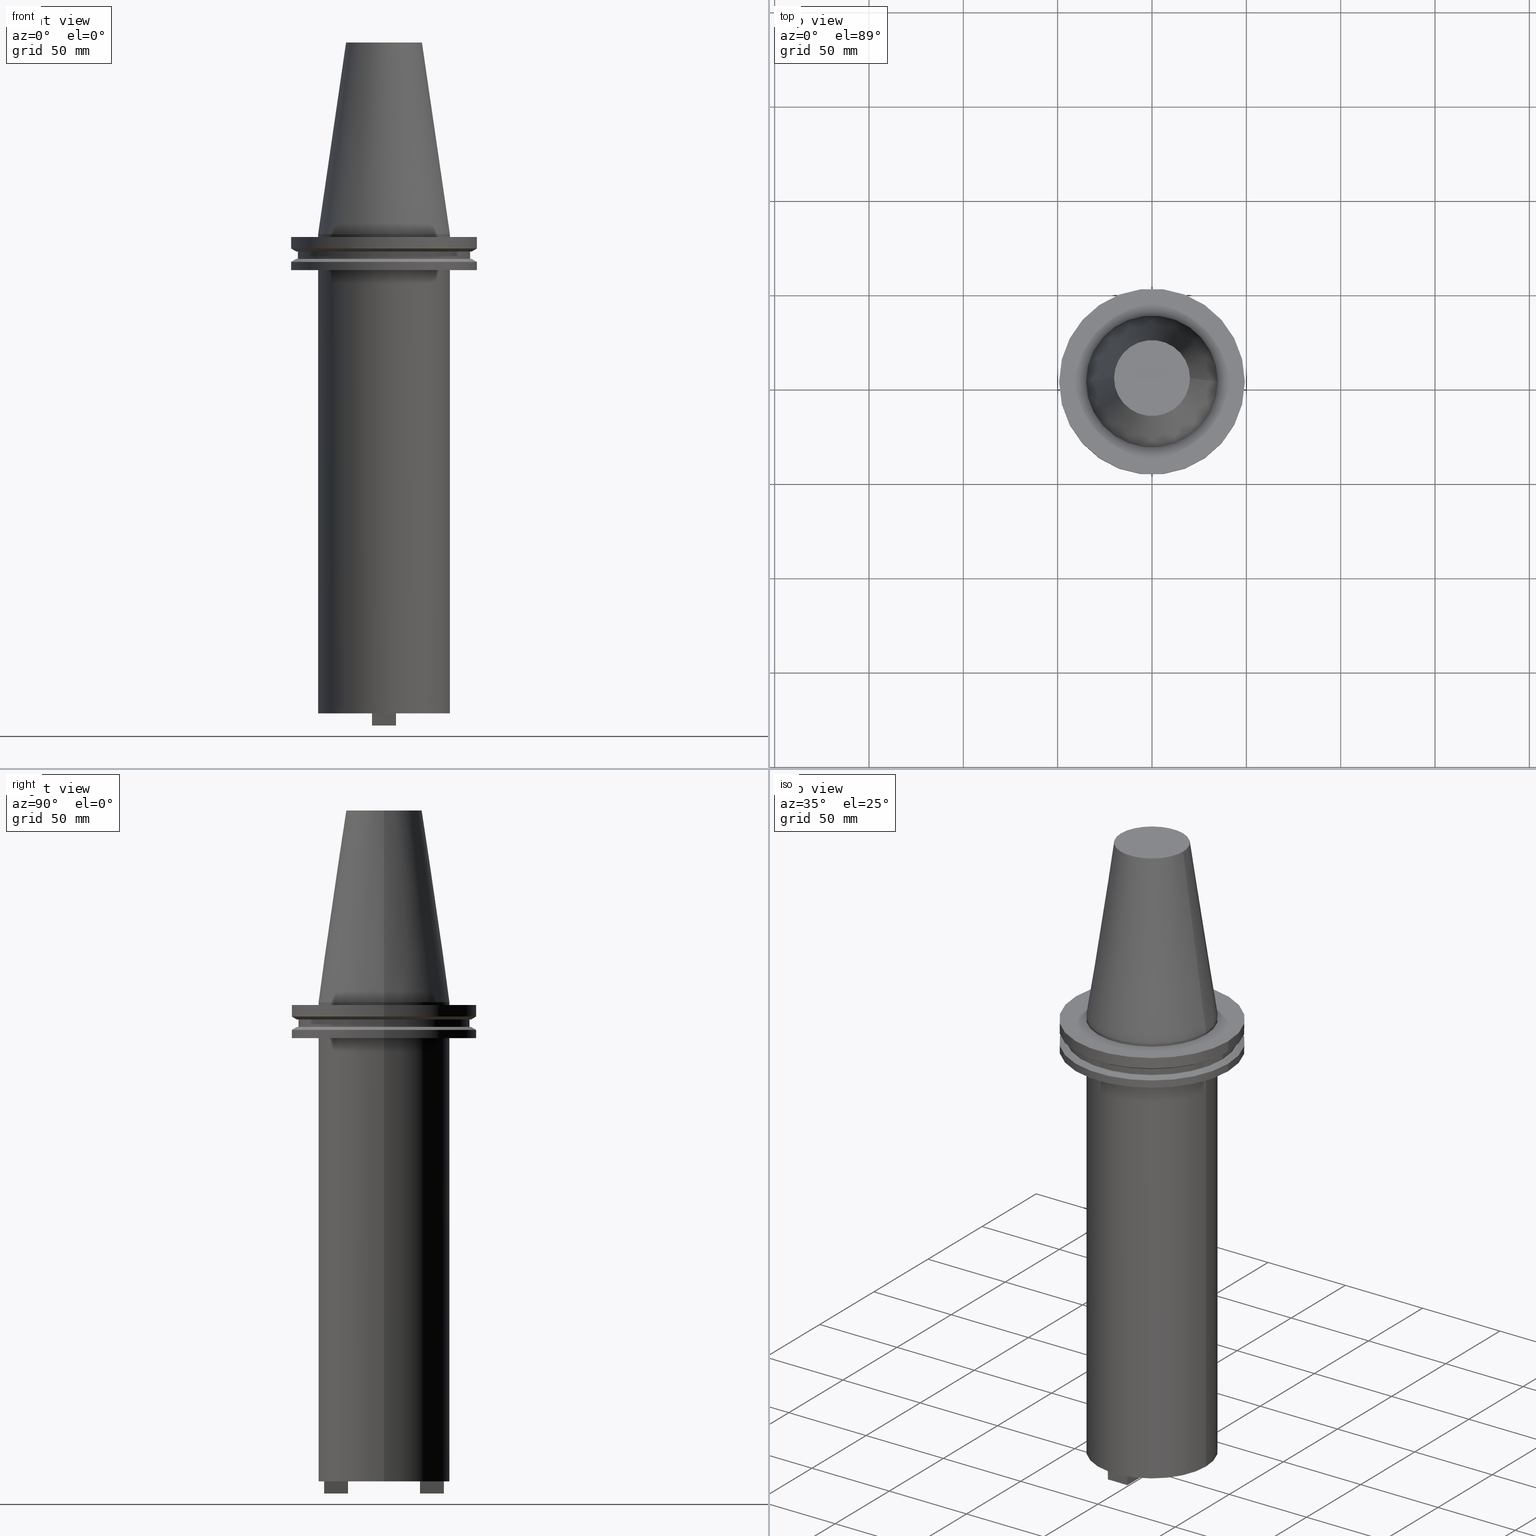
[diagram: canonical four-view strip — front | top / right | iso, engineering-drawing reading convention]
A machine part, canonical four-view strip (front | top / right | iso — engineering-drawing reading convention). The complete STEP part file that produces these views, byte-faithful:
ISO-10303-21;
HEADER;
FILE_DESCRIPTION (( 'STEP AP203' ),
    '1' );
FILE_NAME ('BCV50-SMC1_250-10.stp',
    '2022-03-03T20:06:01',
    ( '' ),
    ( '' ),
    'SwSTEP 2.0',
    'SolidWorks 2021',
    '' );
FILE_SCHEMA (( 'CONFIG_CONTROL_DESIGN' ));
ENDSEC;

DATA;
#1 = CARTESIAN_POINT ( 'NONE',  ( 0.000000000000000000, 46.43919780457007818, -9.204999999999998295 ) ) ;
#2 = VERTEX_POINT ( 'NONE', #973 ) ;
#3 = AXIS2_PLACEMENT_3D ( 'NONE', #482, #575, #794 ) ;
#4 = DIRECTION ( 'NONE',  ( -0.000000000000000000, -0.000000000000000000, 1.000000000000000000 ) ) ;
#5 = CC_DESIGN_DATE_AND_TIME_ASSIGNMENT ( #961, #108, ( #442 ) ) ;
#6 = ADVANCED_FACE ( 'NONE', ( #202 ), #825, .F. ) ;
#7 = EDGE_LOOP ( 'NONE', ( #798, #156, #447, #1006 ) ) ;
#8 = ORIENTED_EDGE ( 'NONE', *, *, #495, .T. ) ;
#9 = FACE_BOUND ( 'NONE', #521, .T. ) ;
#10 = CARTESIAN_POINT ( 'NONE',  ( 6.349999999999984546, -19.05000000000001137, -254.0000000000000000 ) ) ;
#11 = VERTEX_POINT ( 'NONE', #372 ) ;
#12 = VECTOR ( 'NONE', #238, 1000.000000000000000 ) ;
#13 = ORIENTED_EDGE ( 'NONE', *, *, #60, .T. ) ;
#14 = CARTESIAN_POINT ( 'NONE',  ( -46.43919780457007818, 5.857130358318727293E-15, -9.204999999999991189 ) ) ;
#15 = DATE_AND_TIME ( #637, #273 ) ;
#16 = ORIENTED_EDGE ( 'NONE', *, *, #153, .T. ) ;
#17 = ORIENTED_EDGE ( 'NONE', *, *, #449, .T. ) ;
#18 = VECTOR ( 'NONE', #746, 1000.000000000000000 ) ;
#19 = DIRECTION ( 'NONE',  ( 1.000000000000000000, 0.000000000000000000, 0.000000000000000000 ) ) ;
#20 = CALENDAR_DATE ( 2022, 3, 3 ) ;
#21 = ADVANCED_FACE ( 'NONE', ( #560 ), #796, .T. ) ;
#22 = CARTESIAN_POINT ( 'NONE',  ( 0.000000000000000000, 0.000000000000000000, 101.5999999999999801 ) ) ;
#23 = ORIENTED_EDGE ( 'NONE', *, *, #561, .F. ) ;
#24 = ORIENTED_EDGE ( 'NONE', *, *, #920, .F. ) ;
#25 = DIRECTION ( 'NONE',  ( -0.000000000000000000, -0.000000000000000000, 1.000000000000000000 ) ) ;
#26 = CARTESIAN_POINT ( 'NONE',  ( 0.000000000000000000, 0.000000000000000000, 0.000000000000000000 ) ) ;
#27 = DIRECTION ( 'NONE',  ( -0.000000000000000000, -0.000000000000000000, 1.000000000000000000 ) ) ;
#28 = AXIS2_PLACEMENT_3D ( 'NONE', #475, #617, #865 ) ;
#29 = ORIENTED_EDGE ( 'NONE', *, *, #197, .T. ) ;
#30 = DIRECTION ( 'NONE',  ( -0.000000000000000000, -0.000000000000000000, 1.000000000000000000 ) ) ;
#31 = CIRCLE ( 'NONE', #382, 49.21500000000000341 ) ;
#32 = CARTESIAN_POINT ( 'NONE',  ( 34.92499999999999005, 0.000000000000000000, 101.5999999999999943 ) ) ;
#33 = EDGE_CURVE ( 'NONE', #171, #624, #992, .T. ) ;
#34 = ORIENTED_EDGE ( 'NONE', *, *, #977, .T. ) ;
#35 = DIRECTION ( 'NONE',  ( 0.000000000000000000, 0.000000000000000000, -1.000000000000000000 ) ) ;
#36 = DIRECTION ( 'NONE',  ( 1.000000000000000000, 0.000000000000000000, 0.000000000000000000 ) ) ;
#37 = VECTOR ( 'NONE', #904, 1000.000000000000000 ) ;
#38 = LINE ( 'NONE', #121, #154 ) ;
#39 = AXIS2_PLACEMENT_3D ( 'NONE', #847, #605, #144 ) ;
#40 = ORIENTED_EDGE ( 'NONE', *, *, #638, .T. ) ;
#41 = CARTESIAN_POINT ( 'NONE',  ( 6.349999999999992539, 31.75000000000000000, -254.0000000000000000 ) ) ;
#42 = DIRECTION ( 'NONE',  ( 0.000000000000000000, 0.000000000000000000, -1.000000000000000000 ) ) ;
#43 = DIRECTION ( 'NONE',  ( 1.000000000000000000, 0.000000000000000000, 0.000000000000000000 ) ) ;
#44 = ORIENTED_EDGE ( 'NONE', *, *, #540, .T. ) ;
#45 = AXIS2_PLACEMENT_3D ( 'NONE', #366, #737, #890 ) ;
#46 = DIRECTION ( 'NONE',  ( -0.000000000000000000, -0.000000000000000000, 1.000000000000000000 ) ) ;
#47 = DIRECTION ( 'NONE',  ( 1.365923996832132102E-16, -1.000000000000000000, 0.000000000000000000 ) ) ;
#48 = CIRCLE ( 'NONE', #109, 34.92499999999999716 ) ;
#49 = DIRECTION ( 'NONE',  ( 1.365923996832132102E-16, -1.000000000000000000, 0.000000000000000000 ) ) ;
#50 = EDGE_LOOP ( 'NONE', ( #782, #29 ) ) ;
#51 = FACE_BOUND ( 'NONE', #707, .T. ) ;
#52 = EDGE_CURVE ( 'NONE', #959, #556, #340, .T. ) ;
#53 = FACE_OUTER_BOUND ( 'NONE', #348, .T. ) ;
#54 = LINE ( 'NONE', #542, #673 ) ;
#55 = DIRECTION ( 'NONE',  ( 0.000000000000000000, -0.000000000000000000, 1.000000000000000000 ) ) ;
#56 = ORIENTED_EDGE ( 'NONE', *, *, #989, .F. ) ;
#57 = DIRECTION ( 'NONE',  ( -0.000000000000000000, -0.000000000000000000, 1.000000000000000000 ) ) ;
#58 = DIRECTION ( 'NONE',  ( 1.000000000000000000, 0.000000000000000000, 0.000000000000000000 ) ) ;
#59 = DIRECTION ( 'NONE',  ( -1.092739197465706668E-15, -1.000000000000000000, 0.000000000000000000 ) ) ;
#60 = EDGE_CURVE ( 'NONE', #943, #429, #87, .T. ) ;
#61 = LINE ( 'NONE', #974, #855 ) ;
#62 = ORIENTED_EDGE ( 'NONE', *, *, #650, .F. ) ;
#63 = CARTESIAN_POINT ( 'NONE',  ( 0.000000000000000000, 0.000000000000000000, -9.204999999999991189 ) ) ;
#64 = ADVANCED_FACE ( 'NONE', ( #402, #702 ), #628, .F. ) ;
#65 = CARTESIAN_POINT ( 'NONE',  ( 6.349999999999994316, 19.05000000000000426, -254.0000000000000000 ) ) ;
#66 = AXIS2_PLACEMENT_3D ( 'NONE', #281, #511, #671 ) ;
#67 = EDGE_CURVE ( 'NONE', #633, #151, #555, .T. ) ;
#68 = ORIENTED_EDGE ( 'NONE', *, *, #153, .F. ) ;
#69 = CARTESIAN_POINT ( 'NONE',  ( -6.350000000000004974, 31.75000000000000000, -260.4000000000000341 ) ) ;
#70 = AXIS2_PLACEMENT_3D ( 'NONE', #879, #160, #497 ) ;
#71 = CARTESIAN_POINT ( 'NONE',  ( 6.349999999999984546, -31.75000000000000711, -260.4000000000000341 ) ) ;
#72 = ORIENTED_EDGE ( 'NONE', *, *, #817, .T. ) ;
#73 = CARTESIAN_POINT ( 'NONE',  ( 0.000000000000000000, 0.000000000000000000, -13.05499999999999794 ) ) ;
#74 = ORIENTED_EDGE ( 'NONE', *, *, #760, .F. ) ;
#75 = EDGE_CURVE ( 'NONE', #1002, #145, #792, .T. ) ;
#76 = CARTESIAN_POINT ( 'NONE',  ( 0.000000000000000000, 0.000000000000000000, 101.5999999999999943 ) ) ;
#77 = CARTESIAN_POINT ( 'NONE',  ( 0.000000000000000000, 0.000000000000000000, -254.0000000000000000 ) ) ;
#78 = AXIS2_PLACEMENT_3D ( 'NONE', #163, #790, #227 ) ;
#79 = ORIENTED_EDGE ( 'NONE', *, *, #67, .F. ) ;
#80 = CARTESIAN_POINT ( 'NONE',  ( 49.21499999999999631, 0.000000000000000000, 101.5999999999999943 ) ) ;
#81 = FACE_OUTER_BOUND ( 'NONE', #609, .T. ) ;
#82 = EDGE_CURVE ( 'NONE', #699, #271, #469, .T. ) ;
#83 = ORIENTED_EDGE ( 'NONE', *, *, #534, .F. ) ;
#84 = AXIS2_PLACEMENT_3D ( 'NONE', #615, #350, #563 ) ;
#85 = CARTESIAN_POINT ( 'NONE',  ( 45.64500000000000313, 0.000000000000000000, -9.204999999999991189 ) ) ;
#86 = LINE ( 'NONE', #69, #597 ) ;
#87 = LINE ( 'NONE', #419, #910 ) ;
#88 = ADVANCED_FACE ( 'NONE', ( #179 ), #282, .T. ) ;
#89 = ORIENTED_EDGE ( 'NONE', *, *, #681, .T. ) ;
#90 = DIRECTION ( 'NONE',  ( -0.000000000000000000, -0.000000000000000000, 1.000000000000000000 ) ) ;
#91 = PERSON_AND_ORGANIZATION_ROLE ( 'creator' ) ;
#92 = VERTEX_POINT ( 'NONE', #185 ) ;
#93 = ADVANCED_FACE ( 'NONE', ( #353 ), #496, .F. ) ;
#94 = APPROVAL_PERSON_ORGANIZATION ( #880, #840, #789 ) ;
#95 = FACE_OUTER_BOUND ( 'NONE', #787, .T. ) ;
#96 = MECHANICAL_CONTEXT ( 'NONE', #292, 'mechanical' ) ;
#97 = DIRECTION ( 'NONE',  ( -0.000000000000000000, -0.000000000000000000, 1.000000000000000000 ) ) ;
#98 = ORIENTED_EDGE ( 'NONE', *, *, #718, .F. ) ;
#99 = DIRECTION ( 'NONE',  ( 0.000000000000000000, 0.000000000000000000, -1.000000000000000000 ) ) ;
#100 = DIRECTION ( 'NONE',  ( 1.000000000000000000, 0.000000000000000000, 0.000000000000000000 ) ) ;
#101 = ADVANCED_FACE ( 'NONE', ( #983 ), #663, .F. ) ;
#102 = AXIS2_PLACEMENT_3D ( 'NONE', #73, #311, #392 ) ;
#103 = VERTEX_POINT ( 'NONE', #823 ) ;
#104 = CARTESIAN_POINT ( 'NONE',  ( -6.350000000000003197, -19.04999999999999716, -254.0000000000000000 ) ) ;
#105 = DIRECTION ( 'NONE',  ( 0.000000000000000000, 0.000000000000000000, -1.000000000000000000 ) ) ;
#106 = VECTOR ( 'NONE', #520, 1000.000000000000000 ) ;
#107 = LINE ( 'NONE', #182, #695 ) ;
#108 = DATE_TIME_ROLE ( 'creation_date' ) ;
#109 = AXIS2_PLACEMENT_3D ( 'NONE', #77, #395, #948 ) ;
#110 = DIRECTION ( 'NONE',  ( 0.8660254037844169472, 1.060575238724880168E-16, -0.5000000000000375255 ) ) ;
#111 = EDGE_CURVE ( 'NONE', #567, #389, #422, .T. ) ;
#112 = ORIENTED_EDGE ( 'NONE', *, *, #883, .F. ) ;
#113 = VECTOR ( 'NONE', #30, 1000.000000000000000 ) ;
#114 = AXIS2_PLACEMENT_3D ( 'NONE', #568, #177, #875 ) ;
#115 = DIRECTION ( 'NONE',  ( 1.000000000000000000, 0.000000000000000000, 0.000000000000000000 ) ) ;
#116 = EDGE_CURVE ( 'NONE', #526, #599, #38, .T. ) ;
#117 = VECTOR ( 'NONE', #761, 999.9999999999998863 ) ;
#118 = ORIENTED_EDGE ( 'NONE', *, *, #907, .F. ) ;
#119 = DIRECTION ( 'NONE',  ( -0.000000000000000000, -0.000000000000000000, 1.000000000000000000 ) ) ;
#120 = CARTESIAN_POINT ( 'NONE',  ( 46.43919780457007818, 0.000000000000000000, -9.204999999999991189 ) ) ;
#121 = CARTESIAN_POINT ( 'NONE',  ( -6.350000000000004974, -31.75000000000000711, -260.4000000000000341 ) ) ;
#122 = CARTESIAN_POINT ( 'NONE',  ( 6.349999999999984546, -31.75000000000000711, -260.4000000000000341 ) ) ;
#123 = ORIENTED_EDGE ( 'NONE', *, *, #939, .T. ) ;
#124 = AXIS2_PLACEMENT_3D ( 'NONE', #581, #886, #900 ) ;
#125 = EDGE_CURVE ( 'NONE', #354, #214, #878, .T. ) ;
#126 = AXIS2_PLACEMENT_3D ( 'NONE', #853, #149, #945 ) ;
#127 = CARTESIAN_POINT ( 'NONE',  ( 0.000000000000000000, 0.000000000000000000, -14.65761014474876944 ) ) ;
#128 = AXIS2_PLACEMENT_3D ( 'NONE', #386, #232, #616 ) ;
#129 = CARTESIAN_POINT ( 'NONE',  ( 0.000000000000000000, 0.000000000000000000, -9.204999999999991189 ) ) ;
#130 = ORIENTED_EDGE ( 'NONE', *, *, #951, .F. ) ;
#131 = DIRECTION ( 'NONE',  ( 1.000000000000000000, 0.000000000000000000, 0.000000000000000000 ) ) ;
#132 = DIRECTION ( 'NONE',  ( -0.000000000000000000, -0.000000000000000000, 1.000000000000000000 ) ) ;
#133 = CARTESIAN_POINT ( 'NONE',  ( 6.349999999999984546, -31.75000000000000711, -260.4000000000000341 ) ) ;
#134 = AXIS2_PLACEMENT_3D ( 'NONE', #289, #800, #100 ) ;
#135 = ORIENTED_EDGE ( 'NONE', *, *, #726, .T. ) ;
#136 = FACE_BOUND ( 'NONE', #955, .T. ) ;
#137 = ADVANCED_FACE ( 'NONE', ( #658 ), #731, .T. ) ;
#138 = LINE ( 'NONE', #71, #510 ) ;
#139 = VERTEX_POINT ( 'NONE', #815 ) ;
#140 = AXIS2_PLACEMENT_3D ( 'NONE', #76, #4, #438 ) ;
#141 = DIRECTION ( 'NONE',  ( 1.000000000000000000, 0.000000000000000000, 0.000000000000000000 ) ) ;
#142 = LOCAL_TIME ( 14, 6, 1.000000000000000000, #426 ) ;
#143 = ADVANCED_FACE ( 'NONE', ( #980 ), #193, .T. ) ;
#144 = DIRECTION ( 'NONE',  ( 1.000000000000000000, 0.000000000000000000, 0.000000000000000000 ) ) ;
#145 = VERTEX_POINT ( 'NONE', #742 ) ;
#146 = DIRECTION ( 'NONE',  ( -0.000000000000000000, -0.000000000000000000, 1.000000000000000000 ) ) ;
#147 = EDGE_CURVE ( 'NONE', #151, #574, #807, .T. ) ;
#148 = EDGE_LOOP ( 'NONE', ( #336, #693, #552, #373 ) ) ;
#149 = DIRECTION ( 'NONE',  ( -0.000000000000000000, -0.000000000000000000, 1.000000000000000000 ) ) ;
#150 = CARTESIAN_POINT ( 'NONE',  ( 20.10819343178871321, 3.369811209154858606E-15, 101.5999999999999801 ) ) ;
#151 = VERTEX_POINT ( 'NONE', #906 ) ;
#152 = FACE_OUTER_BOUND ( 'NONE', #956, .T. ) ;
#153 = EDGE_CURVE ( 'NONE', #214, #396, #896, .T. ) ;
#154 = VECTOR ( 'NONE', #505, 1000.000000000000000 ) ;
#155 = CARTESIAN_POINT ( 'NONE',  ( 6.349999999999984546, -19.05000000000000782, -260.4000000000000341 ) ) ;
#156 = ORIENTED_EDGE ( 'NONE', *, *, #527, .T. ) ;
#157 = CARTESIAN_POINT ( 'NONE',  ( 34.92499999999999005, 4.277078946022130098E-15, 0.000000000000000000 ) ) ;
#158 = ORIENTED_EDGE ( 'NONE', *, *, #726, .F. ) ;
#159 = AXIS2_PLACEMENT_3D ( 'NONE', #909, #517, #131 ) ;
#160 = DIRECTION ( 'NONE',  ( -0.000000000000000000, -0.000000000000000000, 1.000000000000000000 ) ) ;
#161 = PERSON_AND_ORGANIZATION_ROLE ( 'design_owner' ) ;
#162 = CIRCLE ( 'NONE', #735, 49.21499999999998920 ) ;
#163 = CARTESIAN_POINT ( 'NONE',  ( 0.000000000000000000, 0.000000000000000000, -19.04999999999999716 ) ) ;
#164 = ADVANCED_FACE ( 'NONE', ( #569 ), #705, .T. ) ;
#165 = VERTEX_POINT ( 'NONE', #812 ) ;
#166 = CARTESIAN_POINT ( 'NONE',  ( -6.350000000000004974, 31.75000000000000000, -260.4000000000000341 ) ) ;
#167 = COORDINATED_UNIVERSAL_TIME_OFFSET ( 6, 0, .BEHIND. ) ;
#168 = CIRCLE ( 'NONE', #249, 7.339999999999985647 ) ;
#169 = ORIENTED_EDGE ( 'NONE', *, *, #449, .F. ) ;
#170 = VECTOR ( 'NONE', #667, 1000.000000000000000 ) ;
#171 = VERTEX_POINT ( 'NONE', #360 ) ;
#172 = FACE_OUTER_BOUND ( 'NONE', #852, .T. ) ;
#173 = APPROVAL_DATE_TIME ( #339, #840 ) ;
#174 = EDGE_LOOP ( 'NONE', ( #435, #770, #715, #486 ) ) ;
#175 = ADVANCED_FACE ( 'NONE', ( #577 ), #531, .T. ) ;
#176 = AXIS2_PLACEMENT_3D ( 'NONE', #722, #99, #950 ) ;
#177 = DIRECTION ( 'NONE',  ( -0.000000000000000000, -0.000000000000000000, 1.000000000000000000 ) ) ;
#178 = DATE_AND_TIME ( #653, #142 ) ;
#179 = FACE_OUTER_BOUND ( 'NONE', #975, .T. ) ;
#180 = ORIENTED_EDGE ( 'NONE', *, *, #184, .F. ) ;
#181 = APPROVAL ( #351, 'UNSPECIFIED' ) ;
#182 = CARTESIAN_POINT ( 'NONE',  ( 6.349999999999994316, 19.05000000000000426, -260.4000000000000341 ) ) ;
#183 = DATE_TIME_ROLE ( 'classification_date' ) ;
#184 = EDGE_CURVE ( 'NONE', #190, #271, #168, .T. ) ;
#185 = CARTESIAN_POINT ( 'NONE',  ( -6.350000000000003197, 19.04999999999999716, -260.4000000000000341 ) ) ;
#186 = CIRCLE ( 'NONE', #809, 46.43919780457007818 ) ;
#187 = ORIENTED_EDGE ( 'NONE', *, *, #883, .T. ) ;
#188 = APPROVAL_PERSON_ORGANIZATION ( #810, #181, #483 ) ;
#189 = DIRECTION ( 'NONE',  ( -1.000000000000000000, 0.000000000000000000, -0.000000000000000000 ) ) ;
#190 = VERTEX_POINT ( 'NONE', #255 ) ;
#191 = CARTESIAN_POINT ( 'NONE',  ( -49.21499999999998920, 6.027099222003697037E-15, 101.5999999999999943 ) ) ;
#192 = LINE ( 'NONE', #41, #485 ) ;
#193 = CYLINDRICAL_SURFACE ( 'NONE', #268, 34.92499999999999716 ) ;
#194 = EDGE_CURVE ( 'NONE', #145, #396, #725, .T. ) ;
#195 = PRODUCT ( 'BCV50-SMC1_250-10', 'BCV50-SMC1_250-10', '', ( #96 ) ) ;
#196 = AXIS2_PLACEMENT_3D ( 'NONE', #688, #219, #388 ) ;
#197 = EDGE_CURVE ( 'NONE', #891, #981, #912, .T. ) ;
#198 = ORIENTED_EDGE ( 'NONE', *, *, #288, .T. ) ;
#199 = DIRECTION ( 'NONE',  ( 1.000000000000000000, 0.000000000000000000, 0.000000000000000000 ) ) ;
#200 = FACE_OUTER_BOUND ( 'NONE', #874, .T. ) ;
#201 = DIRECTION ( 'NONE',  ( 1.000000000000000000, 0.000000000000000000, 0.000000000000000000 ) ) ;
#202 = FACE_OUTER_BOUND ( 'NONE', #595, .T. ) ;
#203 = EDGE_LOOP ( 'NONE', ( #620, #245, #24, #828 ) ) ;
#204 = LINE ( 'NONE', #585, #885 ) ;
#205 = AXIS2_PLACEMENT_3D ( 'NONE', #461, #307, #941 ) ;
#206 = LINE ( 'NONE', #519, #1007 ) ;
#207 = DIRECTION ( 'NONE',  ( 1.000000000000000000, -1.092739197465706471E-15, -0.000000000000000000 ) ) ;
#208 = ORIENTED_EDGE ( 'NONE', *, *, #529, .T. ) ;
#209 = EDGE_CURVE ( 'NONE', #959, #389, #913, .T. ) ;
#210 = FACE_OUTER_BOUND ( 'NONE', #457, .T. ) ;
#211 = AXIS2_PLACEMENT_3D ( 'NONE', #610, #59, #390 ) ;
#212 = DIRECTION ( 'NONE',  ( -1.000000000000000000, 0.000000000000000000, 0.000000000000000000 ) ) ;
#213 = AXIS2_PLACEMENT_3D ( 'NONE', #736, #822, #115 ) ;
#214 = VERTEX_POINT ( 'NONE', #1003 ) ;
#215 = DIRECTION ( 'NONE',  ( -1.000000000000000000, 0.000000000000000000, 0.000000000000000000 ) ) ;
#216 = DIRECTION ( 'NONE',  ( 1.000000000000000000, 0.000000000000000000, 0.000000000000000000 ) ) ;
#217 = EDGE_LOOP ( 'NONE', ( #290, #344, #236, #279 ) ) ;
#218 = CYLINDRICAL_SURFACE ( 'NONE', #134, 45.64500000000000313 ) ;
#219 = DIRECTION ( 'NONE',  ( 0.000000000000000000, 0.000000000000000000, -1.000000000000000000 ) ) ;
#220 = ORIENTED_EDGE ( 'NONE', *, *, #321, .F. ) ;
#221 = FACE_BOUND ( 'NONE', #203, .T. ) ;
#222 = DIRECTION ( 'NONE',  ( -0.000000000000000000, -0.000000000000000000, 1.000000000000000000 ) ) ;
#223 = ADVANCED_FACE ( 'NONE', ( #221, #152, #694, #9 ), #400, .F. ) ;
#224 = EDGE_LOOP ( 'NONE', ( #488, #451, #949, #228 ) ) ;
#225 = DIRECTION ( 'NONE',  ( -0.000000000000000000, -0.000000000000000000, 1.000000000000000000 ) ) ;
#226 = CYLINDRICAL_SURFACE ( 'NONE', #947, 49.21499999999999631 ) ;
#227 = DIRECTION ( 'NONE',  ( 1.000000000000000000, 0.000000000000000000, 0.000000000000000000 ) ) ;
#228 = ORIENTED_EDGE ( 'NONE', *, *, #116, .T. ) ;
#229 = ADVANCED_FACE ( 'NONE', ( #755 ), #625, .T. ) ;
#230 = DIRECTION ( 'NONE',  ( -0.000000000000000000, -0.000000000000000000, 1.000000000000000000 ) ) ;
#231 = AXIS2_PLACEMENT_3D ( 'NONE', #431, #572, #427 ) ;
#232 = DIRECTION ( 'NONE',  ( 0.000000000000000000, 0.000000000000000000, -1.000000000000000000 ) ) ;
#233 = VECTOR ( 'NONE', #690, 1000.000000000000000 ) ;
#234 = ORIENTED_EDGE ( 'NONE', *, *, #288, .F. ) ;
#235 =( GEOMETRIC_REPRESENTATION_CONTEXT ( 3 ) GLOBAL_UNCERTAINTY_ASSIGNED_CONTEXT ( ( #780 ) ) GLOBAL_UNIT_ASSIGNED_CONTEXT ( ( #398, #473, #1004 ) ) REPRESENTATION_CONTEXT ( 'NONE', 'WORKASPACE' ) );
#236 = ORIENTED_EDGE ( 'NONE', *, *, #864, .T. ) ;
#237 = LINE ( 'NONE', #778, #269 ) ;
#238 = DIRECTION ( 'NONE',  ( -0.000000000000000000, -0.000000000000000000, 1.000000000000000000 ) ) ;
#239 = ADVANCED_FACE ( 'NONE', ( #592 ), #686, .T. ) ;
#240 = VECTOR ( 'NONE', #46, 1000.000000000000000 ) ;
#241 = ORIENTED_EDGE ( 'NONE', *, *, #540, .F. ) ;
#242 = LINE ( 'NONE', #166, #113 ) ;
#243 = APPROVAL_DATE_TIME ( #15, #594 ) ;
#244 = AXIS2_PLACEMENT_3D ( 'NONE', #583, #674, #43 ) ;
#245 = ORIENTED_EDGE ( 'NONE', *, *, #811, .F. ) ;
#246 = ORIENTED_EDGE ( 'NONE', *, *, #250, .T. ) ;
#247 = FACE_OUTER_BOUND ( 'NONE', #312, .T. ) ;
#248 = CALENDAR_DATE ( 2022, 3, 3 ) ;
#249 = AXIS2_PLACEMENT_3D ( 'NONE', #512, #27, #342 ) ;
#250 = EDGE_CURVE ( 'NONE', #384, #943, #237, .T. ) ;
#251 = ORIENTED_EDGE ( 'NONE', *, *, #303, .F. ) ;
#252 = ORIENTED_EDGE ( 'NONE', *, *, #52, .F. ) ;
#253 = DIRECTION ( 'NONE',  ( -0.000000000000000000, -0.000000000000000000, 1.000000000000000000 ) ) ;
#254 = COORDINATED_UNIVERSAL_TIME_OFFSET ( 6, 0, .BEHIND. ) ;
#255 = CARTESIAN_POINT ( 'NONE',  ( 7.339999999999985647, 0.000000000000000000, -35.04999999999999716 ) ) ;
#256 = EDGE_LOOP ( 'NONE', ( #584, #844 ) ) ;
#257 = EDGE_CURVE ( 'NONE', #171, #981, #553, .T. ) ;
#258 = VERTEX_POINT ( 'NONE', #85 ) ;
#259 = CIRCLE ( 'NONE', #837, 45.64500000000000313 ) ;
#260 = CYLINDRICAL_SURFACE ( 'NONE', #114, 49.21499999999998920 ) ;
#261 = DIRECTION ( 'NONE',  ( -0.000000000000000000, -0.000000000000000000, 1.000000000000000000 ) ) ;
#262 = ORIENTED_EDGE ( 'NONE', *, *, #601, .F. ) ;
#263 = VERTEX_POINT ( 'NONE', #319 ) ;
#264 = CARTESIAN_POINT ( 'NONE',  ( 6.349999999999992539, 31.75000000000000000, -260.4000000000000341 ) ) ;
#265 = EDGE_CURVE ( 'NONE', #429, #599, #54, .T. ) ;
#266 = ADVANCED_BREP_SHAPE_REPRESENTATION ( 'BCV50-SMC1_250-10', ( #367, #294 ), #235 ) ;
#267 = CARTESIAN_POINT ( 'NONE',  ( 49.21499999999998920, 6.027099222003697037E-15, -14.65761014474876944 ) ) ;
#268 = AXIS2_PLACEMENT_3D ( 'NONE', #972, #501, #831 ) ;
#269 = VECTOR ( 'NONE', #207, 1000.000000000000000 ) ;
#270 = DIRECTION ( 'NONE',  ( -0.000000000000000000, -0.000000000000000000, 1.000000000000000000 ) ) ;
#271 = VERTEX_POINT ( 'NONE', #394 ) ;
#272 = CYLINDRICAL_SURFACE ( 'NONE', #680, 7.339999999999985647 ) ;
#273 = LOCAL_TIME ( 14, 6, 1.000000000000000000, #254 ) ;
#274 = ADVANCED_FACE ( 'NONE', ( #621 ), #407, .T. ) ;
#275 = EDGE_CURVE ( 'NONE', #908, #943, #371, .T. ) ;
#276 = LINE ( 'NONE', #370, #327 ) ;
#277 = CARTESIAN_POINT ( 'NONE',  ( 6.349999999999992539, 31.75000000000000000, -260.4000000000000341 ) ) ;
#278 = LINE ( 'NONE', #897, #415 ) ;
#279 = ORIENTED_EDGE ( 'NONE', *, *, #946, .F. ) ;
#280 = CIRCLE ( 'NONE', #84, 49.21499999999999631 ) ;
#281 = CARTESIAN_POINT ( 'NONE',  ( 0.000000000000000000, 0.000000000000000000, -14.65761014474876944 ) ) ;
#282 = CYLINDRICAL_SURFACE ( 'NONE', #45, 49.21499999999999631 ) ;
#283 = EDGE_LOOP ( 'NONE', ( #118, #866, #579, #130 ) ) ;
#284 = ORIENTED_EDGE ( 'NONE', *, *, #82, .F. ) ;
#285 = CARTESIAN_POINT ( 'NONE',  ( -6.350000000000004974, 31.75000000000000000, -260.4000000000000341 ) ) ;
#286 = CC_DESIGN_DATE_AND_TIME_ASSIGNMENT ( #178, #183, ( #364 ) ) ;
#287 = CARTESIAN_POINT ( 'NONE',  ( -6.350000000000004974, 31.75000000000000000, -254.0000000000000000 ) ) ;
#288 = EDGE_CURVE ( 'NONE', #582, #908, #546, .T. ) ;
#289 = CARTESIAN_POINT ( 'NONE',  ( 0.000000000000000000, 0.000000000000000000, 101.5999999999999943 ) ) ;
#290 = ORIENTED_EDGE ( 'NONE', *, *, #527, .F. ) ;
#291 = LINE ( 'NONE', #676, #37 ) ;
#292 = APPLICATION_CONTEXT ( 'configuration controlled 3d designs of mechanical parts and assemblies' ) ;
#293 = CARTESIAN_POINT ( 'NONE',  ( 0.000000000000000000, 49.21499999999999631, -1.499999999999992895 ) ) ;
#294 = AXIS2_PLACEMENT_3D ( 'NONE', #26, #564, #36 ) ;
#295 = CC_DESIGN_PERSON_AND_ORGANIZATION_ASSIGNMENT ( #713, #644, ( #578 ) ) ;
#296 = EDGE_LOOP ( 'NONE', ( #13, #251, #463, #711 ) ) ;
#297 = EDGE_CURVE ( 'NONE', #368, #996, #186, .T. ) ;
#298 = PLANE ( 'NONE',  #453 ) ;
#299 = CIRCLE ( 'NONE', #869, 7.340000000000006075 ) ;
#300 = FACE_OUTER_BOUND ( 'NONE', #634, .T. ) ;
#301 = VECTOR ( 'NONE', #430, 1000.000000000000000 ) ;
#302 = VERTEX_POINT ( 'NONE', #287 ) ;
#303 = EDGE_CURVE ( 'NONE', #165, #429, #471, .T. ) ;
#304 = DIRECTION ( 'NONE',  ( 1.000000000000000000, 0.000000000000000000, 0.000000000000000000 ) ) ;
#305 = CARTESIAN_POINT ( 'NONE',  ( -49.21499999999998920, 6.027099222003697037E-15, -14.65761014474876944 ) ) ;
#306 = ORIENTED_EDGE ( 'NONE', *, *, #376, .F. ) ;
#307 = DIRECTION ( 'NONE',  ( 0.000000000000000000, 0.000000000000000000, -1.000000000000000000 ) ) ;
#308 = PLANE ( 'NONE',  #863 ) ;
#309 = ADVANCED_FACE ( 'NONE', ( #313 ), #783, .F. ) ;
#310 = CIRCLE ( 'NONE', #895, 34.92499999999999005 ) ;
#311 = DIRECTION ( 'NONE',  ( -0.000000000000000000, -0.000000000000000000, 1.000000000000000000 ) ) ;
#312 = EDGE_LOOP ( 'NONE', ( #68, #356, #901, #752 ) ) ;
#313 = FACE_OUTER_BOUND ( 'NONE', #877, .T. ) ;
#314 = DIRECTION ( 'NONE',  ( -1.365923996832131116E-16, 1.000000000000000000, -0.000000000000000000 ) ) ;
#315 = AXIS2_PLACEMENT_3D ( 'NONE', #960, #788, #708 ) ;
#316 = DIRECTION ( 'NONE',  ( -0.000000000000000000, -0.000000000000000000, 1.000000000000000000 ) ) ;
#317 = EDGE_CURVE ( 'NONE', #629, #362, #932, .T. ) ;
#318 = VERTEX_POINT ( 'NONE', #1008 ) ;
#319 = CARTESIAN_POINT ( 'NONE',  ( -34.92499999999999005, 4.277078946022130098E-15, -1.499999999999987566 ) ) ;
#320 = ORIENTED_EDGE ( 'NONE', *, *, #194, .T. ) ;
#321 = EDGE_CURVE ( 'NONE', #981, #891, #280, .T. ) ;
#322 = ORIENTED_EDGE ( 'NONE', *, *, #506, .F. ) ;
#323 = CARTESIAN_POINT ( 'NONE',  ( 0.000000000000000000, 34.92499999999999716, -254.0000000000000000 ) ) ;
#324 = LINE ( 'NONE', #607, #611 ) ;
#325 = CARTESIAN_POINT ( 'NONE',  ( 0.000000000000000000, 0.000000000000000000, 101.5999999999999943 ) ) ;
#326 = ORIENTED_EDGE ( 'NONE', *, *, #495, .F. ) ;
#327 = VECTOR ( 'NONE', #899, 1000.000000000000000 ) ;
#328 = ORIENTED_EDGE ( 'NONE', *, *, #265, .T. ) ;
#329 = LINE ( 'NONE', #405, #507 ) ;
#330 = PERSON_AND_ORGANIZATION ( #868, #832 ) ;
#331 = ORIENTED_EDGE ( 'NONE', *, *, #958, .F. ) ;
#332 = ORIENTED_EDGE ( 'NONE', *, *, #681, .F. ) ;
#333 = CARTESIAN_POINT ( 'NONE',  ( 34.92499999999999005, 4.277078946022130098E-15, 0.000000000000000000 ) ) ;
#334 = CIRCLE ( 'NONE', #985, 46.43919780457007818 ) ;
#335 = CARTESIAN_POINT ( 'NONE',  ( 6.349999999999992539, 31.75000000000000000, -260.4000000000000341 ) ) ;
#336 = ORIENTED_EDGE ( 'NONE', *, *, #958, .T. ) ;
#337 = DIRECTION ( 'NONE',  ( -0.000000000000000000, -0.000000000000000000, 1.000000000000000000 ) ) ;
#338 = LINE ( 'NONE', #914, #954 ) ;
#339 = DATE_AND_TIME ( #248, #813 ) ;
#340 = CIRCLE ( 'NONE', #775, 20.10819343178871321 ) ;
#341 = AXIS2_PLACEMENT_3D ( 'NONE', #1, #871, #937 ) ;
#342 = DIRECTION ( 'NONE',  ( 1.000000000000000000, 0.000000000000000000, 0.000000000000000000 ) ) ;
#343 = EDGE_CURVE ( 'NONE', #354, #669, #652, .T. ) ;
#344 = ORIENTED_EDGE ( 'NONE', *, *, #297, .T. ) ;
#345 = LOCAL_TIME ( 14, 6, 1.000000000000000000, #498 ) ;
#346 = FACE_OUTER_BOUND ( 'NONE', #964, .T. ) ;
#347 = CARTESIAN_POINT ( 'NONE',  ( 49.21499999999998920, 0.000000000000000000, 101.5999999999999943 ) ) ;
#348 = EDGE_LOOP ( 'NONE', ( #898, #262, #399, #424 ) ) ;
#349 = AXIS2_PLACEMENT_3D ( 'NONE', #409, #712, #19 ) ;
#350 = DIRECTION ( 'NONE',  ( -0.000000000000000000, -0.000000000000000000, 1.000000000000000000 ) ) ;
#351 = APPROVAL_STATUS ( 'not_yet_approved' ) ;
#352 = CIRCLE ( 'NONE', #539, 34.92499999999999716 ) ;
#353 = FACE_OUTER_BOUND ( 'NONE', #818, .T. ) ;
#354 = VERTEX_POINT ( 'NONE', #969 ) ;
#355 = ADVANCED_FACE ( 'NONE', ( #346 ), #260, .T. ) ;
#356 = ORIENTED_EDGE ( 'NONE', *, *, #125, .F. ) ;
#357 = LINE ( 'NONE', #191, #240 ) ;
#358 = ADVANCED_FACE ( 'NONE', ( #965 ), #984, .T. ) ;
#359 = DIRECTION ( 'NONE',  ( 1.000000000000000000, -0.000000000000000000, -0.000000000000000000 ) ) ;
#360 = CARTESIAN_POINT ( 'NONE',  ( 49.21500000000000341, 0.000000000000000000, -7.602389855251287187 ) ) ;
#361 = VECTOR ( 'NONE', #867, 999.9999999999998863 ) ;
#362 = VERTEX_POINT ( 'NONE', #494 ) ;
#363 = DIRECTION ( 'NONE',  ( -0.000000000000000000, -0.000000000000000000, 1.000000000000000000 ) ) ;
#364 = SECURITY_CLASSIFICATION ( '', '', #801 ) ;
#365 = DIRECTION ( 'NONE',  ( -0.000000000000000000, -0.000000000000000000, 1.000000000000000000 ) ) ;
#366 = CARTESIAN_POINT ( 'NONE',  ( 0.000000000000000000, 0.000000000000000000, 101.5999999999999943 ) ) ;
#367 = MANIFOLD_SOLID_BREP ( 'Boss-Extrude1', #893 ) ;
#368 = VERTEX_POINT ( 'NONE', #14 ) ;
#369 = ADVANCED_FACE ( 'NONE', ( #172 ), #558, .T. ) ;
#370 = CARTESIAN_POINT ( 'NONE',  ( -6.350000000000003197, -19.04999999999999361, -260.4000000000000341 ) ) ;
#371 = LINE ( 'NONE', #857, #484 ) ;
#372 = CARTESIAN_POINT ( 'NONE',  ( 7.340000000000006075, 0.000000000000000000, -254.0000000000000000 ) ) ;
#373 = ORIENTED_EDGE ( 'NONE', *, *, #376, .T. ) ;
#374 = DIRECTION ( 'NONE',  ( 1.000000000000000000, 0.000000000000000000, 0.000000000000000000 ) ) ;
#375 = DIRECTION ( 'NONE',  ( -1.000000000000000000, -5.463695987328527423E-16, 0.000000000000000000 ) ) ;
#376 = EDGE_CURVE ( 'NONE', #574, #92, #107, .T. ) ;
#377 = CARTESIAN_POINT ( 'NONE',  ( -45.64500000000000313, 5.589900314708094957E-15, -13.05499999999999794 ) ) ;
#378 = AXIS2_PLACEMENT_3D ( 'NONE', #515, #105, #434 ) ;
#379 = ORIENTED_EDGE ( 'NONE', *, *, #811, .T. ) ;
#380 = LINE ( 'NONE', #834, #18 ) ;
#381 = DIRECTION ( 'NONE',  ( -0.000000000000000000, -0.000000000000000000, 1.000000000000000000 ) ) ;
#382 = AXIS2_PLACEMENT_3D ( 'NONE', #626, #401, #926 ) ;
#383 = DIRECTION ( 'NONE',  ( -0.000000000000000000, -1.000000000000000000, -0.000000000000000000 ) ) ;
#384 = VERTEX_POINT ( 'NONE', #104 ) ;
#385 = AXIS2_PLACEMENT_3D ( 'NONE', #509, #363, #199 ) ;
#386 = CARTESIAN_POINT ( 'NONE',  ( 0.000000000000000000, 0.000000000000000000, 0.000000000000000000 ) ) ;
#387 = CARTESIAN_POINT ( 'NONE',  ( 6.349999999999994316, 19.05000000000000426, -260.4000000000000341 ) ) ;
#388 = DIRECTION ( 'NONE',  ( -1.000000000000000000, 0.000000000000000000, -0.000000000000000000 ) ) ;
#389 = VERTEX_POINT ( 'NONE', #333 ) ;
#390 = DIRECTION ( 'NONE',  ( 1.000000000000000000, -1.092739197465706668E-15, 0.000000000000000000 ) ) ;
#391 = CARTESIAN_POINT ( 'NONE',  ( 0.000000000000000000, 0.000000000000000000, 101.5999999999999943 ) ) ;
#392 = DIRECTION ( 'NONE',  ( 1.000000000000000000, 0.000000000000000000, 0.000000000000000000 ) ) ;
#393 = ORIENTED_EDGE ( 'NONE', *, *, #561, .T. ) ;
#394 = CARTESIAN_POINT ( 'NONE',  ( -7.339999999999985647, 8.988907505741556088E-16, -35.04999999999999716 ) ) ;
#395 = DIRECTION ( 'NONE',  ( -0.000000000000000000, -0.000000000000000000, 1.000000000000000000 ) ) ;
#396 = VERTEX_POINT ( 'NONE', #489 ) ;
#397 = DIRECTION ( 'NONE',  ( 1.000000000000000000, 0.000000000000000000, 0.000000000000000000 ) ) ;
#398 =( LENGTH_UNIT ( ) NAMED_UNIT ( * ) SI_UNIT ( .MILLI., .METRE. ) );
#399 = ORIENTED_EDGE ( 'NONE', *, *, #147, .F. ) ;
#400 = PLANE ( 'NONE',  #723 ) ;
#401 = DIRECTION ( 'NONE',  ( -0.000000000000000000, -0.000000000000000000, 1.000000000000000000 ) ) ;
#402 = FACE_OUTER_BOUND ( 'NONE', #256, .T. ) ;
#403 = ORIENTED_EDGE ( 'NONE', *, *, #601, .T. ) ;
#404 = ORIENTED_EDGE ( 'NONE', *, *, #697, .T. ) ;
#405 = CARTESIAN_POINT ( 'NONE',  ( 7.339999999999985647, 0.000000000000000000, 0.000000000000000000 ) ) ;
#406 = CALENDAR_DATE ( 2022, 3, 3 ) ;
#407 = CONICAL_SURFACE ( 'NONE', #205, 34.92499999999999005, 0.1448138465474119452 ) ;
#408 = ORIENTED_EDGE ( 'NONE', *, *, #851, .T. ) ;
#409 = CARTESIAN_POINT ( 'NONE',  ( 0.000000000000000000, 0.000000000000000000, 101.5999999999999801 ) ) ;
#410 = PERSON_AND_ORGANIZATION ( #868, #832 ) ;
#411 = EDGE_LOOP ( 'NONE', ( #34, #480, #728, #704 ) ) ;
#412 = VERTEX_POINT ( 'NONE', #631 ) ;
#413 = DIRECTION ( 'NONE',  ( 1.000000000000000000, 0.000000000000000000, 0.000000000000000000 ) ) ;
#414 = CARTESIAN_POINT ( 'NONE',  ( -6.350000000000003197, -19.04999999999999361, -260.4000000000000341 ) ) ;
#415 = VECTOR ( 'NONE', #513, 1000.000000000000000 ) ;
#416 = APPROVAL_DATE_TIME ( #724, #181 ) ;
#417 = EDGE_CURVE ( 'NONE', #11, #190, #329, .T. ) ;
#418 = APPLICATION_CONTEXT ( 'configuration controlled 3d designs of mechanical parts and assemblies' ) ;
#419 = CARTESIAN_POINT ( 'NONE',  ( 6.349999999999984546, -31.75000000000000711, -254.0000000000000000 ) ) ;
#420 = ORIENTED_EDGE ( 'NONE', *, *, #772, .T. ) ;
#421 = CARTESIAN_POINT ( 'NONE',  ( 6.349999999999984546, -31.75000000000001421, -254.0000000000000000 ) ) ;
#422 = LINE ( 'NONE', #32, #672 ) ;
#423 = LOCAL_TIME ( 14, 6, 1.000000000000000000, #167 ) ;
#424 = ORIENTED_EDGE ( 'NONE', *, *, #989, .T. ) ;
#425 = DIRECTION ( 'NONE',  ( -1.000000000000000000, -5.463695987328527423E-16, 0.000000000000000000 ) ) ;
#426 = COORDINATED_UNIVERSAL_TIME_OFFSET ( 6, 0, .BEHIND. ) ;
#427 = DIRECTION ( 'NONE',  ( 1.000000000000000000, 0.000000000000000000, 0.000000000000000000 ) ) ;
#428 = ADVANCED_FACE ( 'NONE', ( #95 ), #799, .F. ) ;
#429 = VERTEX_POINT ( 'NONE', #421 ) ;
#430 = DIRECTION ( 'NONE',  ( -0.000000000000000000, -0.000000000000000000, 1.000000000000000000 ) ) ;
#431 = CARTESIAN_POINT ( 'NONE',  ( 0.000000000000000000, 0.000000000000000000, -13.05499999999999794 ) ) ;
#432 = EDGE_LOOP ( 'NONE', ( #606, #16, #420, #470 ) ) ;
#433 = CARTESIAN_POINT ( 'NONE',  ( 0.000000000000000000, 0.000000000000000000, -1.499999999999987566 ) ) ;
#434 = DIRECTION ( 'NONE',  ( -1.000000000000000000, 0.000000000000000000, -0.000000000000000000 ) ) ;
#435 = ORIENTED_EDGE ( 'NONE', *, *, #317, .F. ) ;
#436 = AXIS2_PLACEMENT_3D ( 'NONE', #63, #381, #58 ) ;
#437 = DIRECTION ( 'NONE',  ( -0.000000000000000000, -0.000000000000000000, 1.000000000000000000 ) ) ;
#438 = DIRECTION ( 'NONE',  ( 1.000000000000000000, 0.000000000000000000, 0.000000000000000000 ) ) ;
#439 = ORIENTED_EDGE ( 'NONE', *, *, #650, .T. ) ;
#440 = CARTESIAN_POINT ( 'NONE',  ( -20.10819343178871321, 0.000000000000000000, 101.5999999999999801 ) ) ;
#441 = AXIS2_PLACEMENT_3D ( 'NONE', #264, #729, #35 ) ;
#442 = PRODUCT_DEFINITION ( 'UNKNOWN', '', #578, #571 ) ;
#443 = ADVANCED_FACE ( 'NONE', ( #247 ), #784, .T. ) ;
#444 = DIRECTION ( 'NONE',  ( 1.000000000000000000, 0.000000000000000000, 0.000000000000000000 ) ) ;
#445 = DIRECTION ( 'NONE',  ( -0.000000000000000000, -0.000000000000000000, 1.000000000000000000 ) ) ;
#446 = CARTESIAN_POINT ( 'NONE',  ( -6.350000000000004974, -31.75000000000000711, -254.0000000000000000 ) ) ;
#447 = ORIENTED_EDGE ( 'NONE', *, *, #33, .F. ) ;
#448 = DIRECTION ( 'NONE',  ( 1.000000000000000000, 0.000000000000000000, -0.000000000000000000 ) ) ;
#449 = EDGE_CURVE ( 'NONE', #271, #190, #935, .T. ) ;
#450 = CARTESIAN_POINT ( 'NONE',  ( -7.340000000000006075, 8.988907505741579754E-16, -254.0000000000000000 ) ) ;
#451 = ORIENTED_EDGE ( 'NONE', *, *, #851, .F. ) ;
#452 = CARTESIAN_POINT ( 'NONE',  ( 6.349999999999992539, 31.75000000000000000, -260.4000000000000341 ) ) ;
#453 = AXIS2_PLACEMENT_3D ( 'NONE', #602, #978, #47 ) ;
#454 = CC_DESIGN_PERSON_AND_ORGANIZATION_ASSIGNMENT ( #870, #161, ( #195 ) ) ;
#455 = CARTESIAN_POINT ( 'NONE',  ( 0.000000000000000000, 0.000000000000000000, -254.0000000000000000 ) ) ;
#456 = EDGE_CURVE ( 'NONE', #258, #362, #751, .T. ) ;
#457 = EDGE_LOOP ( 'NONE', ( #873, #198, #404, #40 ) ) ;
#458 = VECTOR ( 'NONE', #212, 1000.000000000000000 ) ;
#459 = PLANE ( 'NONE',  #196 ) ;
#460 = ORIENTED_EDGE ( 'NONE', *, *, #487, .T. ) ;
#461 = CARTESIAN_POINT ( 'NONE',  ( 0.000000000000000000, 0.000000000000000000, 0.000000000000000000 ) ) ;
#462 = FACE_OUTER_BOUND ( 'NONE', #224, .T. ) ;
#463 = ORIENTED_EDGE ( 'NONE', *, *, #697, .F. ) ;
#464 = AXIS2_PLACEMENT_3D ( 'NONE', #587, #42, #189 ) ;
#465 = EDGE_CURVE ( 'NONE', #629, #848, #259, .T. ) ;
#466 = DIRECTION ( 'NONE',  ( 0.000000000000000000, -0.000000000000000000, 1.000000000000000000 ) ) ;
#467 = DIRECTION ( 'NONE',  ( -0.000000000000000000, -0.000000000000000000, 1.000000000000000000 ) ) ;
#468 = CONICAL_SURFACE ( 'NONE', #128, 34.92499999999999005, 0.1448138465474119452 ) ;
#469 = LINE ( 'NONE', #781, #643 ) ;
#470 = ORIENTED_EDGE ( 'NONE', *, *, #343, .F. ) ;
#471 = LINE ( 'NONE', #133, #492 ) ;
#472 = CC_DESIGN_PERSON_AND_ORGANIZATION_ASSIGNMENT ( #410, #91, ( #578 ) ) ;
#473 =( NAMED_UNIT ( * ) PLANE_ANGLE_UNIT ( ) SI_UNIT ( $, .RADIAN. ) );
#474 = EDGE_CURVE ( 'NONE', #145, #1002, #966, .T. ) ;
#475 = CARTESIAN_POINT ( 'NONE',  ( 0.000000000000000000, 0.000000000000000000, -7.602389855251287187 ) ) ;
#476 = ORIENTED_EDGE ( 'NONE', *, *, #184, .T. ) ;
#477 = CARTESIAN_POINT ( 'NONE',  ( 0.000000000000000000, 0.000000000000000000, -13.05499999999999794 ) ) ;
#478 = APPROVAL_STATUS ( 'not_yet_approved' ) ;
#479 = DIRECTION ( 'NONE',  ( 1.000000000000000000, -0.000000000000000000, -0.000000000000000000 ) ) ;
#480 = ORIENTED_EDGE ( 'NONE', *, *, #907, .T. ) ;
#481 = ORIENTED_EDGE ( 'NONE', *, *, #75, .F. ) ;
#482 = CARTESIAN_POINT ( 'NONE',  ( 0.000000000000000000, 0.000000000000000000, -35.04999999999999716 ) ) ;
#483 = APPROVAL_ROLE ( '' ) ;
#484 = VECTOR ( 'NONE', #230, 1000.000000000000000 ) ;
#485 = VECTOR ( 'NONE', #359, 1000.000000000000000 ) ;
#486 = ORIENTED_EDGE ( 'NONE', *, *, #630, .F. ) ;
#487 = EDGE_CURVE ( 'NONE', #633, #302, #242, .T. ) ;
#488 = ORIENTED_EDGE ( 'NONE', *, *, #506, .T. ) ;
#489 = CARTESIAN_POINT ( 'NONE',  ( 49.21499999999998920, 0.000000000000000000, -14.65761014474876944 ) ) ;
#490 = APPROVAL_ROLE ( '' ) ;
#491 = DIRECTION ( 'NONE',  ( 1.000000000000000000, 0.000000000000000000, 0.000000000000000000 ) ) ;
#492 = VECTOR ( 'NONE', #445, 1000.000000000000000 ) ;
#493 = EDGE_LOOP ( 'NONE', ( #623, #797 ) ) ;
#494 = CARTESIAN_POINT ( 'NONE',  ( -45.64500000000000313, 5.589900314708094957E-15, -9.204999999999991189 ) ) ;
#495 = EDGE_CURVE ( 'NONE', #556, #959, #522, .T. ) ;
#496 = CYLINDRICAL_SURFACE ( 'NONE', #545, 7.339999999999985647 ) ;
#497 = DIRECTION ( 'NONE',  ( 1.000000000000000000, 0.000000000000000000, 0.000000000000000000 ) ) ;
#498 = COORDINATED_UNIVERSAL_TIME_OFFSET ( 6, 0, .BEHIND. ) ;
#499 = VECTOR ( 'NONE', #110, 1000.000000000000114 ) ;
#500 = ADVANCED_FACE ( 'NONE', ( #717 ), #648, .T. ) ;
#501 = DIRECTION ( 'NONE',  ( -0.000000000000000000, -0.000000000000000000, 1.000000000000000000 ) ) ;
#502 = ORIENTED_EDGE ( 'NONE', *, *, #630, .T. ) ;
#503 = VECTOR ( 'NONE', #375, 1000.000000000000000 ) ;
#504 = ORIENTED_EDGE ( 'NONE', *, *, #861, .F. ) ;
#505 = DIRECTION ( 'NONE',  ( -0.000000000000000000, -0.000000000000000000, 1.000000000000000000 ) ) ;
#506 = EDGE_CURVE ( 'NONE', #599, #384, #380, .T. ) ;
#507 = VECTOR ( 'NONE', #337, 1000.000000000000000 ) ;
#508 = ORIENTED_EDGE ( 'NONE', *, *, #772, .F. ) ;
#509 = CARTESIAN_POINT ( 'NONE',  ( 0.000000000000000000, 0.000000000000000000, 0.000000000000000000 ) ) ;
#510 = VECTOR ( 'NONE', #383, 1000.000000000000000 ) ;
#511 = DIRECTION ( 'NONE',  ( -0.000000000000000000, -0.000000000000000000, 1.000000000000000000 ) ) ;
#512 = CARTESIAN_POINT ( 'NONE',  ( 0.000000000000000000, 0.000000000000000000, -35.04999999999999716 ) ) ;
#513 = DIRECTION ( 'NONE',  ( 1.365923996832130130E-16, 1.000000000000000000, 0.000000000000000000 ) ) ;
#514 = PLANE ( 'NONE',  #881 ) ;
#515 = CARTESIAN_POINT ( 'NONE',  ( 0.000000000000000000, 0.000000000000000000, -260.4000000000000341 ) ) ;
#516 = ORIENTED_EDGE ( 'NONE', *, *, #939, .F. ) ;
#517 = DIRECTION ( 'NONE',  ( 0.000000000000000000, -0.000000000000000000, 1.000000000000000000 ) ) ;
#518 = ADVANCED_FACE ( 'NONE', ( #976 ), #272, .F. ) ;
#519 = CARTESIAN_POINT ( 'NONE',  ( -34.92499999999999716, 4.277078946022130887E-15, 101.5999999999999943 ) ) ;
#520 = DIRECTION ( 'NONE',  ( -0.000000000000000000, -0.000000000000000000, 1.000000000000000000 ) ) ;
#521 = EDGE_LOOP ( 'NONE', ( #322, #892, #640, #675 ) ) ;
#522 = CIRCLE ( 'NONE', #349, 20.10819343178871321 ) ;
#523 = DIRECTION ( 'NONE',  ( 0.000000000000000000, -0.000000000000000000, 1.000000000000000000 ) ) ;
#524 = AXIS2_PLACEMENT_3D ( 'NONE', #455, #1005, #613 ) ;
#525 = CARTESIAN_POINT ( 'NONE',  ( -34.92499999999999716, 4.277078946022130887E-15, -254.0000000000000000 ) ) ;
#526 = VERTEX_POINT ( 'NONE', #734 ) ;
#527 = EDGE_CURVE ( 'NONE', #368, #624, #204, .T. ) ;
#528 = CARTESIAN_POINT ( 'NONE',  ( 6.349999999999984546, -31.75000000000000711, -260.4000000000000341 ) ) ;
#529 = EDGE_CURVE ( 'NONE', #103, #302, #291, .T. ) ;
#530 = CARTESIAN_POINT ( 'NONE',  ( -34.92499999999999005, 0.000000000000000000, 0.000000000000000000 ) ) ;
#531 = CONICAL_SURFACE ( 'NONE', #124, 49.21499999999998920, 1.047197551196554333 ) ;
#532 = ORIENTED_EDGE ( 'NONE', *, *, #82, .T. ) ;
#533 = CC_DESIGN_SECURITY_CLASSIFICATION ( #364, ( #578 ) ) ;
#534 = EDGE_CURVE ( 'NONE', #1002, #669, #357, .T. ) ;
#535 = DIRECTION ( 'NONE',  ( 1.000000000000000000, 0.000000000000000000, 0.000000000000000000 ) ) ;
#536 = EDGE_LOOP ( 'NONE', ( #284, #332, #716, #476 ) ) ;
#537 = CARTESIAN_POINT ( 'NONE',  ( -45.64500000000000313, 5.589900314708094957E-15, 101.5999999999999943 ) ) ;
#538 = DIRECTION ( 'NONE',  ( -0.000000000000000000, -0.000000000000000000, 1.000000000000000000 ) ) ;
#539 = AXIS2_PLACEMENT_3D ( 'NONE', #769, #146, #924 ) ;
#540 = EDGE_CURVE ( 'NONE', #647, #389, #816, .T. ) ;
#541 = ORIENTED_EDGE ( 'NONE', *, *, #465, .F. ) ;
#542 = CARTESIAN_POINT ( 'NONE',  ( 6.349999999999984546, -31.75000000000000711, -254.0000000000000000 ) ) ;
#543 = CARTESIAN_POINT ( 'NONE',  ( 0.000000000000000000, 0.000000000000000000, -19.04999999999999716 ) ) ;
#544 = ORIENTED_EDGE ( 'NONE', *, *, #995, .F. ) ;
#545 = AXIS2_PLACEMENT_3D ( 'NONE', #645, #261, #201 ) ;
#546 = LINE ( 'NONE', #668, #233 ) ;
#547 = ADVANCED_FACE ( 'NONE', ( #821, #51 ), #590, .F. ) ;
#548 = DIRECTION ( 'NONE',  ( -0.000000000000000000, -0.000000000000000000, 1.000000000000000000 ) ) ;
#549 = CIRCLE ( 'NONE', #979, 34.92499999999999716 ) ;
#550 = DIRECTION ( 'NONE',  ( -0.000000000000000000, -0.000000000000000000, 1.000000000000000000 ) ) ;
#551 = ORIENTED_EDGE ( 'NONE', *, *, #474, .F. ) ;
#552 = ORIENTED_EDGE ( 'NONE', *, *, #147, .T. ) ;
#553 = LINE ( 'NONE', #80, #106 ) ;
#554 = APPROVAL_STATUS ( 'not_yet_approved' ) ;
#555 = LINE ( 'NONE', #335, #593 ) ;
#556 = VERTEX_POINT ( 'NONE', #440 ) ;
#557 = ORIENTED_EDGE ( 'NONE', *, *, #534, .T. ) ;
#558 = CYLINDRICAL_SURFACE ( 'NONE', #664, 34.92499999999999005 ) ;
#559 = SHAPE_DEFINITION_REPRESENTATION ( #768, #266 ) ;
#560 = FACE_OUTER_BOUND ( 'NONE', #411, .T. ) ;
#561 = EDGE_CURVE ( 'NONE', #699, #11, #299, .T. ) ;
#562 = ORIENTED_EDGE ( 'NONE', *, *, #257, .T. ) ;
#563 = DIRECTION ( 'NONE',  ( 1.000000000000000000, 0.000000000000000000, 0.000000000000000000 ) ) ;
#564 = DIRECTION ( 'NONE',  ( 0.000000000000000000, 0.000000000000000000, 1.000000000000000000 ) ) ;
#565 = AXIS2_PLACEMENT_3D ( 'NONE', #543, #222, #141 ) ;
#566 = ADVANCED_FACE ( 'NONE', ( #670 ), #596, .F. ) ;
#567 = VERTEX_POINT ( 'NONE', #923 ) ;
#568 = CARTESIAN_POINT ( 'NONE',  ( 0.000000000000000000, 0.000000000000000000, 101.5999999999999943 ) ) ;
#569 = FACE_OUTER_BOUND ( 'NONE', #217, .T. ) ;
#570 = CARTESIAN_POINT ( 'NONE',  ( 0.000000000000000000, 0.000000000000000000, -9.204999999999991189 ) ) ;
#571 = DESIGN_CONTEXT ( 'detailed design', #418, 'design' ) ;
#572 = DIRECTION ( 'NONE',  ( -0.000000000000000000, -0.000000000000000000, 1.000000000000000000 ) ) ;
#573 = DIRECTION ( 'NONE',  ( 0.000000000000000000, 1.000000000000000000, 0.000000000000000000 ) ) ;
#574 = VERTEX_POINT ( 'NONE', #387 ) ;
#575 = DIRECTION ( 'NONE',  ( -0.000000000000000000, -0.000000000000000000, 1.000000000000000000 ) ) ;
#576 = ADVANCED_FACE ( 'NONE', ( #683 ), #218, .T. ) ;
#577 = FACE_OUTER_BOUND ( 'NONE', #432, .T. ) ;
#578 = PRODUCT_DEFINITION_FORMATION_WITH_SPECIFIED_SOURCE ( 'ANY', '', #195, .NOT_KNOWN. ) ;
#579 = ORIENTED_EDGE ( 'NONE', *, *, #806, .T. ) ;
#580 = DIRECTION ( 'NONE',  ( 0.000000000000000000, 0.000000000000000000, 1.000000000000000000 ) ) ;
#581 = CARTESIAN_POINT ( 'NONE',  ( 0.000000000000000000, 0.000000000000000000, -14.65761014474876944 ) ) ;
#582 = VERTEX_POINT ( 'NONE', #414 ) ;
#583 = CARTESIAN_POINT ( 'NONE',  ( 0.000000000000000000, 0.000000000000000000, -9.204999999999991189 ) ) ;
#584 = ORIENTED_EDGE ( 'NONE', *, *, #819, .F. ) ;
#585 = CARTESIAN_POINT ( 'NONE',  ( -46.43919780457007818, 5.687161494633754392E-15, -9.204999999999991189 ) ) ;
#586 = LINE ( 'NONE', #748, #503 ) ;
#587 = CARTESIAN_POINT ( 'NONE',  ( 0.000000000000000000, 20.10819343178871321, 101.5999999999999943 ) ) ;
#588 = EDGE_CURVE ( 'NONE', #848, #258, #338, .T. ) ;
#589 = ORIENTED_EDGE ( 'NONE', *, *, #417, .F. ) ;
#590 = PLANE ( 'NONE',  #159 ) ;
#591 = DIRECTION ( 'NONE',  ( -1.365923996832131609E-16, 1.000000000000000000, 0.000000000000000000 ) ) ;
#592 = FACE_OUTER_BOUND ( 'NONE', #804, .T. ) ;
#593 = VECTOR ( 'NONE', #479, 1000.000000000000000 ) ;
#594 = APPROVAL ( #478, 'UNSPECIFIED' ) ;
#595 = EDGE_LOOP ( 'NONE', ( #328, #968, #814, #860 ) ) ;
#596 = PLANE ( 'NONE',  #632 ) ;
#597 = VECTOR ( 'NONE', #314, 1000.000000000000000 ) ;
#598 = DIRECTION ( 'NONE',  ( 1.000000000000000000, 0.000000000000000000, 0.000000000000000000 ) ) ;
#599 = VERTEX_POINT ( 'NONE', #446 ) ;
#600 = AXIS2_PLACEMENT_3D ( 'NONE', #641, #253, #894 ) ;
#601 = EDGE_CURVE ( 'NONE', #574, #679, #61, .T. ) ;
#602 = CARTESIAN_POINT ( 'NONE',  ( 6.349999999999992539, 31.75000000000000000, -260.4000000000000341 ) ) ;
#603 = AXIS2_PLACEMENT_3D ( 'NONE', #293, #905, #677 ) ;
#604 = DIRECTION ( 'NONE',  ( -1.000000000000000000, -5.463695987328527423E-16, 0.000000000000000000 ) ) ;
#605 = DIRECTION ( 'NONE',  ( 0.000000000000000000, -0.000000000000000000, 1.000000000000000000 ) ) ;
#606 = ORIENTED_EDGE ( 'NONE', *, *, #661, .F. ) ;
#607 = CARTESIAN_POINT ( 'NONE',  ( 6.349999999999992539, 31.75000000000000000, -254.0000000000000000 ) ) ;
#608 = CARTESIAN_POINT ( 'NONE',  ( 0.000000000000000000, 0.000000000000000000, 0.000000000000000000 ) ) ;
#609 = EDGE_LOOP ( 'NONE', ( #762, #326, #776, #44 ) ) ;
#610 = CARTESIAN_POINT ( 'NONE',  ( 6.349999999999984546, -19.05000000000000782, -260.4000000000000341 ) ) ;
#611 = VECTOR ( 'NONE', #696, 1000.000000000000000 ) ;
#612 = LINE ( 'NONE', #452, #727 ) ;
#613 = DIRECTION ( 'NONE',  ( 1.000000000000000000, 0.000000000000000000, 0.000000000000000000 ) ) ;
#614 = ORIENTED_EDGE ( 'NONE', *, *, #456, .T. ) ;
#615 = CARTESIAN_POINT ( 'NONE',  ( 0.000000000000000000, 0.000000000000000000, -1.499999999999987566 ) ) ;
#616 = DIRECTION ( 'NONE',  ( -1.000000000000000000, 0.000000000000000000, 0.000000000000000000 ) ) ;
#617 = DIRECTION ( 'NONE',  ( -0.000000000000000000, -0.000000000000000000, 1.000000000000000000 ) ) ;
#618 = VECTOR ( 'NONE', #132, 1000.000000000000000 ) ;
#619 = EDGE_CURVE ( 'NONE', #526, #582, #278, .T. ) ;
#620 = ORIENTED_EDGE ( 'NONE', *, *, #529, .F. ) ;
#621 = FACE_OUTER_BOUND ( 'NONE', #745, .T. ) ;
#622 = CARTESIAN_POINT ( 'NONE',  ( -34.92499999999999005, 4.277078946022130098E-15, 101.5999999999999943 ) ) ;
#623 = ORIENTED_EDGE ( 'NONE', *, *, #125, .T. ) ;
#624 = VERTEX_POINT ( 'NONE', #738 ) ;
#625 = CYLINDRICAL_SURFACE ( 'NONE', #140, 34.92499999999999005 ) ;
#626 = CARTESIAN_POINT ( 'NONE',  ( 0.000000000000000000, 0.000000000000000000, -7.602389855251287187 ) ) ;
#627 = CIRCLE ( 'NONE', #565, 34.92499999999999716 ) ;
#628 = PLANE ( 'NONE',  #341 ) ;
#629 = VERTEX_POINT ( 'NONE', #377 ) ;
#630 = EDGE_CURVE ( 'NONE', #362, #258, #921, .T. ) ;
#631 = CARTESIAN_POINT ( 'NONE',  ( 6.349999999999992539, 31.75000000000000000, -254.0000000000000000 ) ) ;
#632 = AXIS2_PLACEMENT_3D ( 'NONE', #774, #938, #604 ) ;
#633 = VERTEX_POINT ( 'NONE', #902 ) ;
#634 = EDGE_LOOP ( 'NONE', ( #180, #169 ) ) ;
#635 = DIRECTION ( 'NONE',  ( -0.000000000000000000, -0.000000000000000000, 1.000000000000000000 ) ) ;
#636 = CC_DESIGN_PERSON_AND_ORGANIZATION_ASSIGNMENT ( #952, #971, ( #364 ) ) ;
#637 = CALENDAR_DATE ( 2022, 3, 3 ) ;
#638 = EDGE_CURVE ( 'NONE', #165, #526, #826, .T. ) ;
#639 = ORIENTED_EDGE ( 'NONE', *, *, #928, .T. ) ;
#640 = ORIENTED_EDGE ( 'NONE', *, *, #60, .F. ) ;
#641 = CARTESIAN_POINT ( 'NONE',  ( 0.000000000000000000, 0.000000000000000000, 101.5999999999999943 ) ) ;
#642 = DIRECTION ( 'NONE',  ( -0.000000000000000000, -0.000000000000000000, 1.000000000000000000 ) ) ;
#643 = VECTOR ( 'NONE', #97, 1000.000000000000000 ) ;
#644 = PERSON_AND_ORGANIZATION_ROLE ( 'design_supplier' ) ;
#645 = CARTESIAN_POINT ( 'NONE',  ( 0.000000000000000000, 0.000000000000000000, 0.000000000000000000 ) ) ;
#646 = CIRCLE ( 'NONE', #66, 49.21499999999998920 ) ;
#647 = VERTEX_POINT ( 'NONE', #843 ) ;
#648 = CYLINDRICAL_SURFACE ( 'NONE', #600, 49.21499999999998920 ) ;
#649 = DIRECTION ( 'NONE',  ( -0.000000000000000000, -0.000000000000000000, 1.000000000000000000 ) ) ;
#650 = EDGE_CURVE ( 'NONE', #389, #647, #698, .T. ) ;
#651 = VERTEX_POINT ( 'NONE', #525 ) ;
#652 = LINE ( 'NONE', #957, #732 ) ;
#653 = CALENDAR_DATE ( 2022, 3, 3 ) ;
#654 = DIRECTION ( 'NONE',  ( -0.000000000000000000, -0.000000000000000000, 1.000000000000000000 ) ) ;
#655 = ORIENTED_EDGE ( 'NONE', *, *, #786, .F. ) ;
#656 = ORIENTED_EDGE ( 'NONE', *, *, #52, .T. ) ;
#657 = CARTESIAN_POINT ( 'NONE',  ( 0.000000000000000000, 0.000000000000000000, -260.4000000000000341 ) ) ;
#658 = FACE_OUTER_BOUND ( 'NONE', #148, .T. ) ;
#659 = ORIENTED_EDGE ( 'NONE', *, *, #317, .T. ) ;
#660 = EDGE_LOOP ( 'NONE', ( #379, #544, #306, #403 ) ) ;
#661 = EDGE_CURVE ( 'NONE', #214, #354, #334, .T. ) ;
#662 = PLANE ( 'NONE',  #603 ) ;
#663 = PLANE ( 'NONE',  #464 ) ;
#664 = AXIS2_PLACEMENT_3D ( 'NONE', #888, #25, #805 ) ;
#665 = EDGE_LOOP ( 'NONE', ( #655, #689, #562, #986 ) ) ;
#666 = AXIS2_PLACEMENT_3D ( 'NONE', #528, #215, #580 ) ;
#667 = DIRECTION ( 'NONE',  ( 0.8660254037844273833, 0.000000000000000000, 0.5000000000000195399 ) ) ;
#668 = CARTESIAN_POINT ( 'NONE',  ( 6.349999999999984546, -19.05000000000000782, -260.4000000000000341 ) ) ;
#669 = VERTEX_POINT ( 'NONE', #305 ) ;
#670 = FACE_OUTER_BOUND ( 'NONE', #660, .T. ) ;
#671 = DIRECTION ( 'NONE',  ( 1.000000000000000000, 0.000000000000000000, 0.000000000000000000 ) ) ;
#672 = VECTOR ( 'NONE', #654, 1000.000000000000000 ) ;
#673 = VECTOR ( 'NONE', #749, 1000.000000000000000 ) ;
#674 = DIRECTION ( 'NONE',  ( -0.000000000000000000, -0.000000000000000000, 1.000000000000000000 ) ) ;
#675 = ORIENTED_EDGE ( 'NONE', *, *, #250, .F. ) ;
#676 = CARTESIAN_POINT ( 'NONE',  ( -6.350000000000004974, 31.75000000000000000, -254.0000000000000000 ) ) ;
#677 = DIRECTION ( 'NONE',  ( -1.000000000000000000, 0.000000000000000000, -0.000000000000000000 ) ) ;
#678 = FACE_BOUND ( 'NONE', #756, .T. ) ;
#679 = VERTEX_POINT ( 'NONE', #65 ) ;
#680 = AXIS2_PLACEMENT_3D ( 'NONE', #839, #119, #757 ) ;
#681 = EDGE_CURVE ( 'NONE', #11, #699, #953, .T. ) ;
#682 = DIRECTION ( 'NONE',  ( 1.000000000000000000, -1.365923996832130130E-16, 0.000000000000000000 ) ) ;
#683 = FACE_OUTER_BOUND ( 'NONE', #174, .T. ) ;
#684 = PLANE ( 'NONE',  #39 ) ;
#685 = ORIENTED_EDGE ( 'NONE', *, *, #951, .T. ) ;
#686 = CYLINDRICAL_SURFACE ( 'NONE', #126, 45.64500000000000313 ) ;
#687 = CARTESIAN_POINT ( 'NONE',  ( -49.21499999999998920, 6.027099222003697037E-15, -19.04999999999999716 ) ) ;
#688 = CARTESIAN_POINT ( 'NONE',  ( 0.000000000000000000, 45.64500000000000313, -13.05499999999999794 ) ) ;
#689 = ORIENTED_EDGE ( 'NONE', *, *, #946, .T. ) ;
#690 = DIRECTION ( 'NONE',  ( 1.000000000000000000, -1.092739197465706471E-15, -0.000000000000000000 ) ) ;
#691 = CARTESIAN_POINT ( 'NONE',  ( -6.350000000000004974, -31.75000000000000711, -260.4000000000000341 ) ) ;
#692 = EDGE_CURVE ( 'NONE', #556, #647, #850, .T. ) ;
#693 = ORIENTED_EDGE ( 'NONE', *, *, #67, .T. ) ;
#694 = FACE_BOUND ( 'NONE', #882, .T. ) ;
#695 = VECTOR ( 'NONE', #425, 1000.000000000000000 ) ;
#696 = DIRECTION ( 'NONE',  ( 1.365923996832132102E-16, -1.000000000000000000, 0.000000000000000000 ) ) ;
#697 = EDGE_CURVE ( 'NONE', #908, #165, #138, .T. ) ;
#698 = CIRCLE ( 'NONE', #967, 34.92499999999999005 ) ;
#699 = VERTEX_POINT ( 'NONE', #450 ) ;
#700 = CARTESIAN_POINT ( 'NONE',  ( 0.000000000000000000, 0.000000000000000000, -1.499999999999987566 ) ) ;
#701 = FACE_OUTER_BOUND ( 'NONE', #665, .T. ) ;
#702 = FACE_BOUND ( 'NONE', #919, .T. ) ;
#703 = ADVANCED_FACE ( 'NONE', ( #678, #998 ), #459, .F. ) ;
#704 = ORIENTED_EDGE ( 'NONE', *, *, #806, .F. ) ;
#705 = CONICAL_SURFACE ( 'NONE', #846, 46.43919780457007818, 1.047197551196575205 ) ;
#706 = ADVANCED_FACE ( 'NONE', ( #300 ), #684, .F. ) ;
#707 = EDGE_LOOP ( 'NONE', ( #639, #685 ) ) ;
#708 = DIRECTION ( 'NONE',  ( 1.000000000000000000, 0.000000000000000000, 0.000000000000000000 ) ) ;
#709 = PERSON_AND_ORGANIZATION ( #868, #832 ) ;
#710 = APPROVAL_PERSON_ORGANIZATION ( #330, #594, #490 ) ;
#711 = ORIENTED_EDGE ( 'NONE', *, *, #275, .T. ) ;
#712 = DIRECTION ( 'NONE',  ( -0.000000000000000000, -0.000000000000000000, 1.000000000000000000 ) ) ;
#713 = PERSON_AND_ORGANIZATION ( #868, #832 ) ;
#714 = VECTOR ( 'NONE', #771, 1000.000000000000000 ) ;
#715 = ORIENTED_EDGE ( 'NONE', *, *, #588, .T. ) ;
#716 = ORIENTED_EDGE ( 'NONE', *, *, #417, .T. ) ;
#717 = FACE_OUTER_BOUND ( 'NONE', #739, .T. ) ;
#718 = EDGE_CURVE ( 'NONE', #651, #318, #352, .T. ) ;
#719 = PERSON_AND_ORGANIZATION_ROLE ( 'creator' ) ;
#720 = DIRECTION ( 'NONE',  ( -0.000000000000000000, -0.000000000000000000, 1.000000000000000000 ) ) ;
#721 = ORIENTED_EDGE ( 'NONE', *, *, #786, .T. ) ;
#722 = CARTESIAN_POINT ( 'NONE',  ( 0.000000000000000000, 0.000000000000000000, -14.65761014474876944 ) ) ;
#723 = AXIS2_PLACEMENT_3D ( 'NONE', #323, #466, #936 ) ;
#724 = DATE_AND_TIME ( #20, #345 ) ;
#725 = LINE ( 'NONE', #347, #829 ) ;
#726 = EDGE_CURVE ( 'NONE', #848, #629, #767, .T. ) ;
#727 = VECTOR ( 'NONE', #467, 1000.000000000000000 ) ;
#728 = ORIENTED_EDGE ( 'NONE', *, *, #928, .F. ) ;
#729 = DIRECTION ( 'NONE',  ( 0.000000000000000000, -1.000000000000000000, -0.000000000000000000 ) ) ;
#730 = APPLICATION_PROTOCOL_DEFINITION ( 'international standard', 'config_control_design', 1994, #418 ) ;
#731 = PLANE ( 'NONE',  #378 ) ;
#732 = VECTOR ( 'NONE', #884, 1000.000000000000114 ) ;
#733 = ORIENTED_EDGE ( 'NONE', *, *, #588, .F. ) ;
#734 = CARTESIAN_POINT ( 'NONE',  ( -6.350000000000004974, -31.75000000000000711, -260.4000000000000341 ) ) ;
#735 = AXIS2_PLACEMENT_3D ( 'NONE', #127, #437, #444 ) ;
#736 = CARTESIAN_POINT ( 'NONE',  ( 0.000000000000000000, 0.000000000000000000, -1.499999999999987566 ) ) ;
#737 = DIRECTION ( 'NONE',  ( -0.000000000000000000, -0.000000000000000000, 1.000000000000000000 ) ) ;
#738 = CARTESIAN_POINT ( 'NONE',  ( -49.21500000000000341, 6.027099222003699404E-15, -7.602389855251287187 ) ) ;
#739 = EDGE_LOOP ( 'NONE', ( #83, #916, #320, #504 ) ) ;
#740 = ADVANCED_FACE ( 'NONE', ( #136, #922 ), #662, .F. ) ;
#741 = CARTESIAN_POINT ( 'NONE',  ( 45.64500000000000313, 0.000000000000000000, -13.05499999999999794 ) ) ;
#742 = CARTESIAN_POINT ( 'NONE',  ( 49.21499999999998920, 0.000000000000000000, -19.04999999999999716 ) ) ;
#743 = ORIENTED_EDGE ( 'NONE', *, *, #692, .F. ) ;
#744 = VECTOR ( 'NONE', #548, 1000.000000000000000 ) ;
#745 = EDGE_LOOP ( 'NONE', ( #252, #925, #439, #743 ) ) ;
#746 = DIRECTION ( 'NONE',  ( 1.365923996832130130E-16, 1.000000000000000000, 0.000000000000000000 ) ) ;
#747 = ADVANCED_FACE ( 'NONE', ( #758 ), #911, .F. ) ;
#748 = CARTESIAN_POINT ( 'NONE',  ( 6.349999999999994316, 19.05000000000000426, -254.0000000000000000 ) ) ;
#749 = DIRECTION ( 'NONE',  ( -1.000000000000000000, 0.000000000000000000, 0.000000000000000000 ) ) ;
#750 = CARTESIAN_POINT ( 'NONE',  ( 6.349999999999984546, -31.75000000000000711, -260.4000000000000341 ) ) ;
#751 = CIRCLE ( 'NONE', #70, 45.64500000000000313 ) ;
#752 = ORIENTED_EDGE ( 'NONE', *, *, #861, .T. ) ;
#753 = CARTESIAN_POINT ( 'NONE',  ( 0.000000000000000000, 0.000000000000000000, -254.0000000000000000 ) ) ;
#754 = CARTESIAN_POINT ( 'NONE',  ( 34.92499999999999716, 0.000000000000000000, 101.5999999999999943 ) ) ;
#755 = FACE_OUTER_BOUND ( 'NONE', #944, .T. ) ;
#756 = EDGE_LOOP ( 'NONE', ( #158, #541 ) ) ;
#757 = DIRECTION ( 'NONE',  ( 1.000000000000000000, 0.000000000000000000, 0.000000000000000000 ) ) ;
#758 = FACE_OUTER_BOUND ( 'NONE', #296, .T. ) ;
#759 = AXIS2_PLACEMENT_3D ( 'NONE', #325, #550, #803 ) ;
#760 = EDGE_CURVE ( 'NONE', #263, #567, #872, .T. ) ;
#761 = DIRECTION ( 'NONE',  ( -0.1443082272672999988, 0.000000000000000000, -0.9895327864921755756 ) ) ;
#762 = ORIENTED_EDGE ( 'NONE', *, *, #209, .F. ) ;
#763 = CIRCLE ( 'NONE', #436, 46.43919780457007818 ) ;
#764 = LINE ( 'NONE', #933, #12 ) ;
#765 = CARTESIAN_POINT ( 'NONE',  ( 0.000000000000000000, 0.000000000000000000, -13.05499999999999794 ) ) ;
#766 = ORIENTED_EDGE ( 'NONE', *, *, #111, .T. ) ;
#767 = CIRCLE ( 'NONE', #102, 45.64500000000000313 ) ;
#768 = PRODUCT_DEFINITION_SHAPE ( 'NONE', 'NONE',  #442 ) ;
#769 = CARTESIAN_POINT ( 'NONE',  ( 0.000000000000000000, 0.000000000000000000, -254.0000000000000000 ) ) ;
#770 = ORIENTED_EDGE ( 'NONE', *, *, #465, .T. ) ;
#771 = DIRECTION ( 'NONE',  ( -0.000000000000000000, -0.000000000000000000, 1.000000000000000000 ) ) ;
#772 = EDGE_CURVE ( 'NONE', #396, #669, #162, .T. ) ;
#773 = DIRECTION ( 'NONE',  ( 1.365923996832130130E-16, 1.000000000000000000, 0.000000000000000000 ) ) ;
#774 = CARTESIAN_POINT ( 'NONE',  ( 6.349999999999994316, 19.05000000000000426, -260.4000000000000341 ) ) ;
#775 = AXIS2_PLACEMENT_3D ( 'NONE', #22, #316, #491 ) ;
#776 = ORIENTED_EDGE ( 'NONE', *, *, #692, .T. ) ;
#777 = PRODUCT_RELATED_PRODUCT_CATEGORY ( 'detail', '', ( #195 ) ) ;
#778 = CARTESIAN_POINT ( 'NONE',  ( 6.349999999999984546, -19.05000000000000782, -254.0000000000000000 ) ) ;
#779 = CARTESIAN_POINT ( 'NONE',  ( 0.000000000000000000, 0.000000000000000000, -19.04999999999999716 ) ) ;
#780 = UNCERTAINTY_MEASURE_WITH_UNIT (LENGTH_MEASURE( 1.000000000000000082E-05 ), #398, 'distance_accuracy_value', 'NONE');
#781 = CARTESIAN_POINT ( 'NONE',  ( -7.339999999999985647, 8.988907505741556088E-16, 0.000000000000000000 ) ) ;
#782 = ORIENTED_EDGE ( 'NONE', *, *, #321, .T. ) ;
#783 = PLANE ( 'NONE',  #211 ) ;
#784 = CONICAL_SURFACE ( 'NONE', #176, 49.21499999999998920, 1.047197551196554333 ) ;
#785 = APPLICATION_PROTOCOL_DEFINITION ( 'international standard', 'config_control_design', 1994, #292 ) ;
#786 = EDGE_CURVE ( 'NONE', #624, #891, #982, .T. ) ;
#787 = EDGE_LOOP ( 'NONE', ( #72, #56, #79, #460 ) ) ;
#788 = DIRECTION ( 'NONE',  ( -0.000000000000000000, -0.000000000000000000, 1.000000000000000000 ) ) ;
#789 = APPROVAL_ROLE ( '' ) ;
#790 = DIRECTION ( 'NONE',  ( -0.000000000000000000, -0.000000000000000000, 1.000000000000000000 ) ) ;
#791 = ORIENTED_EDGE ( 'NONE', *, *, #456, .F. ) ;
#792 = CIRCLE ( 'NONE', #78, 49.21499999999998920 ) ;
#793 = AXIS2_PLACEMENT_3D ( 'NONE', #700, #225, #397 ) ;
#794 = DIRECTION ( 'NONE',  ( 1.000000000000000000, 0.000000000000000000, 0.000000000000000000 ) ) ;
#795 = COORDINATED_UNIVERSAL_TIME_OFFSET ( 6, 0, .BEHIND. ) ;
#796 = CYLINDRICAL_SURFACE ( 'NONE', #759, 34.92499999999999716 ) ;
#797 = ORIENTED_EDGE ( 'NONE', *, *, #661, .T. ) ;
#798 = ORIENTED_EDGE ( 'NONE', *, *, #819, .T. ) ;
#799 = PLANE ( 'NONE',  #441 ) ;
#800 = DIRECTION ( 'NONE',  ( -0.000000000000000000, -0.000000000000000000, 1.000000000000000000 ) ) ;
#801 = SECURITY_CLASSIFICATION_LEVEL ( 'unclassified' ) ;
#802 = AXIS2_PLACEMENT_3D ( 'NONE', #570, #90, #808 ) ;
#803 = DIRECTION ( 'NONE',  ( 1.000000000000000000, 0.000000000000000000, 0.000000000000000000 ) ) ;
#804 = EDGE_LOOP ( 'NONE', ( #135, #659, #791, #733 ) ) ;
#805 = DIRECTION ( 'NONE',  ( 1.000000000000000000, 0.000000000000000000, 0.000000000000000000 ) ) ;
#806 = EDGE_CURVE ( 'NONE', #318, #2, #997, .T. ) ;
#807 = LINE ( 'NONE', #277, #927 ) ;
#808 = DIRECTION ( 'NONE',  ( 1.000000000000000000, 0.000000000000000000, 0.000000000000000000 ) ) ;
#809 = AXIS2_PLACEMENT_3D ( 'NONE', #862, #988, #836 ) ;
#810 = PERSON_AND_ORGANIZATION ( #868, #832 ) ;
#811 = EDGE_CURVE ( 'NONE', #679, #103, #586, .T. ) ;
#812 = CARTESIAN_POINT ( 'NONE',  ( 6.349999999999984546, -31.75000000000000711, -260.4000000000000341 ) ) ;
#813 = LOCAL_TIME ( 14, 6, 1.000000000000000000, #795 ) ;
#814 = ORIENTED_EDGE ( 'NONE', *, *, #638, .F. ) ;
#815 = CARTESIAN_POINT ( 'NONE',  ( -34.92499999999999716, 4.277078946022130887E-15, -19.04999999999999716 ) ) ;
#816 = CIRCLE ( 'NONE', #385, 34.92499999999999005 ) ;
#817 = EDGE_CURVE ( 'NONE', #302, #412, #192, .T. ) ;
#818 = EDGE_LOOP ( 'NONE', ( #23, #532, #17, #589 ) ) ;
#819 = EDGE_CURVE ( 'NONE', #996, #368, #763, .T. ) ;
#820 = ORIENTED_EDGE ( 'NONE', *, *, #995, .T. ) ;
#821 = FACE_OUTER_BOUND ( 'NONE', #903, .T. ) ;
#822 = DIRECTION ( 'NONE',  ( -0.000000000000000000, -0.000000000000000000, 1.000000000000000000 ) ) ;
#823 = CARTESIAN_POINT ( 'NONE',  ( -6.350000000000003197, 19.04999999999999716, -254.0000000000000000 ) ) ;
#824 = CC_DESIGN_PERSON_AND_ORGANIZATION_ASSIGNMENT ( #709, #719, ( #442 ) ) ;
#825 = PLANE ( 'NONE',  #859 ) ;
#826 = LINE ( 'NONE', #122, #458 ) ;
#827 = ADVANCED_FACE ( 'NONE', ( #210 ), #987, .F. ) ;
#828 = ORIENTED_EDGE ( 'NONE', *, *, #817, .F. ) ;
#829 = VECTOR ( 'NONE', #649, 1000.000000000000000 ) ;
#830 = DIRECTION ( 'NONE',  ( 1.000000000000000000, 1.365923996832131609E-16, 0.000000000000000000 ) ) ;
#831 = DIRECTION ( 'NONE',  ( 1.000000000000000000, 0.000000000000000000, 0.000000000000000000 ) ) ;
#832 = ORGANIZATION ( 'UNSPECIFIED', 'UNSPECIFIED', '' ) ;
#833 = ORIENTED_EDGE ( 'NONE', *, *, #111, .F. ) ;
#834 = CARTESIAN_POINT ( 'NONE',  ( -6.350000000000004974, -31.75000000000000711, -254.0000000000000000 ) ) ;
#835 = DIRECTION ( 'NONE',  ( -0.000000000000000000, -0.000000000000000000, 1.000000000000000000 ) ) ;
#836 = DIRECTION ( 'NONE',  ( 1.000000000000000000, 0.000000000000000000, 0.000000000000000000 ) ) ;
#837 = AXIS2_PLACEMENT_3D ( 'NONE', #477, #635, #413 ) ;
#838 = ORIENTED_EDGE ( 'NONE', *, *, #33, .T. ) ;
#839 = CARTESIAN_POINT ( 'NONE',  ( 0.000000000000000000, 0.000000000000000000, 0.000000000000000000 ) ) ;
#840 = APPROVAL ( #554, 'UNSPECIFIED' ) ;
#841 = ADVANCED_FACE ( 'NONE', ( #53 ), #298, .F. ) ;
#842 = CARTESIAN_POINT ( 'NONE',  ( -49.21499999999999631, 6.027099222003697826E-15, 101.5999999999999943 ) ) ;
#843 = CARTESIAN_POINT ( 'NONE',  ( -34.92499999999999005, 0.000000000000000000, 0.000000000000000000 ) ) ;
#844 = ORIENTED_EDGE ( 'NONE', *, *, #297, .F. ) ;
#845 = DIRECTION ( 'NONE',  ( 1.000000000000000000, 0.000000000000000000, 0.000000000000000000 ) ) ;
#846 = AXIS2_PLACEMENT_3D ( 'NONE', #129, #720, #962 ) ;
#847 = CARTESIAN_POINT ( 'NONE',  ( 0.000000000000000000, 34.92499999999999716, -35.04999999999999716 ) ) ;
#848 = VERTEX_POINT ( 'NONE', #741 ) ;
#849 = CC_DESIGN_APPROVAL ( #594, ( #364 ) ) ;
#850 = LINE ( 'NONE', #530, #117 ) ;
#851 = EDGE_CURVE ( 'NONE', #582, #384, #276, .T. ) ;
#852 = EDGE_LOOP ( 'NONE', ( #516, #934, #766, #241 ) ) ;
#853 = CARTESIAN_POINT ( 'NONE',  ( 0.000000000000000000, 0.000000000000000000, 101.5999999999999943 ) ) ;
#854 = LINE ( 'NONE', #622, #744 ) ;
#855 = VECTOR ( 'NONE', #270, 1000.000000000000000 ) ;
#856 = ORIENTED_EDGE ( 'NONE', *, *, #275, .F. ) ;
#857 = CARTESIAN_POINT ( 'NONE',  ( 6.349999999999984546, -19.05000000000000782, -260.4000000000000341 ) ) ;
#858 = DIRECTION ( 'NONE',  ( -0.000000000000000000, -0.000000000000000000, 1.000000000000000000 ) ) ;
#859 = AXIS2_PLACEMENT_3D ( 'NONE', #750, #573, #55 ) ;
#860 = ORIENTED_EDGE ( 'NONE', *, *, #303, .T. ) ;
#861 = EDGE_CURVE ( 'NONE', #669, #396, #646, .T. ) ;
#862 = CARTESIAN_POINT ( 'NONE',  ( 0.000000000000000000, 0.000000000000000000, -9.204999999999991189 ) ) ;
#863 = AXIS2_PLACEMENT_3D ( 'NONE', #691, #682, #773 ) ;
#864 = EDGE_CURVE ( 'NONE', #996, #171, #993, .T. ) ;
#865 = DIRECTION ( 'NONE',  ( 1.000000000000000000, 0.000000000000000000, 0.000000000000000000 ) ) ;
#866 = ORIENTED_EDGE ( 'NONE', *, *, #718, .T. ) ;
#867 = DIRECTION ( 'NONE',  ( 0.1443082272672999988, 1.767266086135277066E-17, -0.9895327864921755756 ) ) ;
#868 = PERSON ( 'UNSPECIFIED', 'UNSPECIFIED', 'UNSPECIFIED', ('UNSPECIFIED'), ('UNSPECIFIED'), ('UNSPECIFIED') ) ;
#869 = AXIS2_PLACEMENT_3D ( 'NONE', #753, #57, #374 ) ;
#870 = PERSON_AND_ORGANIZATION ( #868, #832 ) ;
#871 = DIRECTION ( 'NONE',  ( 0.000000000000000000, -0.000000000000000000, 1.000000000000000000 ) ) ;
#872 = CIRCLE ( 'NONE', #213, 34.92499999999999005 ) ;
#873 = ORIENTED_EDGE ( 'NONE', *, *, #619, .T. ) ;
#874 = EDGE_LOOP ( 'NONE', ( #208, #999, #331, #820 ) ) ;
#875 = DIRECTION ( 'NONE',  ( 1.000000000000000000, 0.000000000000000000, 0.000000000000000000 ) ) ;
#876 = DIRECTION ( 'NONE',  ( -0.000000000000000000, -1.000000000000000000, -0.000000000000000000 ) ) ;
#877 = EDGE_LOOP ( 'NONE', ( #246, #856, #234, #408 ) ) ;
#878 = CIRCLE ( 'NONE', #231, 46.43919780457007818 ) ;
#879 = CARTESIAN_POINT ( 'NONE',  ( 0.000000000000000000, 0.000000000000000000, -9.204999999999991189 ) ) ;
#880 = PERSON_AND_ORGANIZATION ( #868, #832 ) ;
#881 = AXIS2_PLACEMENT_3D ( 'NONE', #285, #830, #591 ) ;
#882 = EDGE_LOOP ( 'NONE', ( #89, #393 ) ) ;
#883 = EDGE_CURVE ( 'NONE', #567, #263, #310, .T. ) ;
#884 = DIRECTION ( 'NONE',  ( -0.8660254037844169472, 0.000000000000000000, -0.5000000000000375255 ) ) ;
#885 = VECTOR ( 'NONE', #991, 1000.000000000000000 ) ;
#886 = DIRECTION ( 'NONE',  ( 0.000000000000000000, 0.000000000000000000, -1.000000000000000000 ) ) ;
#887 = EDGE_LOOP ( 'NONE', ( #8, #656 ) ) ;
#888 = CARTESIAN_POINT ( 'NONE',  ( 0.000000000000000000, 0.000000000000000000, 101.5999999999999943 ) ) ;
#889 = ADVANCED_FACE ( 'NONE', ( #200 ), #514, .F. ) ;
#890 = DIRECTION ( 'NONE',  ( 1.000000000000000000, 0.000000000000000000, 0.000000000000000000 ) ) ;
#891 = VERTEX_POINT ( 'NONE', #918 ) ;
#892 = ORIENTED_EDGE ( 'NONE', *, *, #265, .F. ) ;
#893 = CLOSED_SHELL ( 'NONE', ( #93, #229, #88, #358, #239, #175, #355, #21, #274, #223, #1000, #101, #143, #547, #500, #443, #703, #576, #64, #164, #917, #740, #369, #518, #706, #889, #428, #841, #566, #137, #970, #309, #747, #6, #827 ) ) ;
#894 = DIRECTION ( 'NONE',  ( 1.000000000000000000, 0.000000000000000000, 0.000000000000000000 ) ) ;
#895 = AXIS2_PLACEMENT_3D ( 'NONE', #433, #365, #598 ) ;
#896 = LINE ( 'NONE', #267, #499 ) ;
#897 = CARTESIAN_POINT ( 'NONE',  ( -6.350000000000004974, -31.75000000000000711, -260.4000000000000341 ) ) ;
#898 = ORIENTED_EDGE ( 'NONE', *, *, #920, .T. ) ;
#899 = DIRECTION ( 'NONE',  ( -0.000000000000000000, -0.000000000000000000, 1.000000000000000000 ) ) ;
#900 = DIRECTION ( 'NONE',  ( -1.000000000000000000, 0.000000000000000000, 0.000000000000000000 ) ) ;
#901 = ORIENTED_EDGE ( 'NONE', *, *, #343, .T. ) ;
#902 = CARTESIAN_POINT ( 'NONE',  ( -6.350000000000004974, 31.75000000000000000, -260.4000000000000341 ) ) ;
#903 = EDGE_LOOP ( 'NONE', ( #551, #481 ) ) ;
#904 = DIRECTION ( 'NONE',  ( -1.365923996832131116E-16, 1.000000000000000000, -0.000000000000000000 ) ) ;
#905 = DIRECTION ( 'NONE',  ( 0.000000000000000000, 0.000000000000000000, -1.000000000000000000 ) ) ;
#906 = CARTESIAN_POINT ( 'NONE',  ( 6.349999999999992539, 31.75000000000000000, -260.4000000000000341 ) ) ;
#907 = EDGE_CURVE ( 'NONE', #651, #139, #206, .T. ) ;
#908 = VERTEX_POINT ( 'NONE', #155 ) ;
#909 = CARTESIAN_POINT ( 'NONE',  ( 0.000000000000000000, 49.21499999999998920, -19.04999999999999716 ) ) ;
#910 = VECTOR ( 'NONE', #876, 1000.000000000000000 ) ;
#911 = PLANE ( 'NONE',  #666 ) ;
#912 = CIRCLE ( 'NONE', #793, 49.21499999999999631 ) ;
#913 = LINE ( 'NONE', #157, #361 ) ;
#914 = CARTESIAN_POINT ( 'NONE',  ( 45.64500000000000313, 0.000000000000000000, 101.5999999999999943 ) ) ;
#915 = AXIS2_PLACEMENT_3D ( 'NONE', #657, #523, #448 ) ;
#916 = ORIENTED_EDGE ( 'NONE', *, *, #75, .T. ) ;
#917 = ADVANCED_FACE ( 'NONE', ( #701 ), #226, .T. ) ;
#918 = CARTESIAN_POINT ( 'NONE',  ( -49.21499999999999631, 6.027099222003697826E-15, -1.499999999999987566 ) ) ;
#919 = EDGE_LOOP ( 'NONE', ( #614, #502 ) ) ;
#920 = EDGE_CURVE ( 'NONE', #412, #679, #324, .T. ) ;
#921 = CIRCLE ( 'NONE', #244, 45.64500000000000313 ) ;
#922 = FACE_OUTER_BOUND ( 'NONE', #50, .T. ) ;
#923 = CARTESIAN_POINT ( 'NONE',  ( 34.92499999999999005, 0.000000000000000000, -1.499999999999987566 ) ) ;
#924 = DIRECTION ( 'NONE',  ( 1.000000000000000000, 0.000000000000000000, 0.000000000000000000 ) ) ;
#925 = ORIENTED_EDGE ( 'NONE', *, *, #209, .T. ) ;
#926 = DIRECTION ( 'NONE',  ( 1.000000000000000000, 0.000000000000000000, 0.000000000000000000 ) ) ;
#927 = VECTOR ( 'NONE', #49, 1000.000000000000000 ) ;
#928 = EDGE_CURVE ( 'NONE', #2, #139, #627, .T. ) ;
#929 = DIRECTION ( 'NONE',  ( -0.000000000000000000, -0.000000000000000000, 1.000000000000000000 ) ) ;
#930 = ORIENTED_EDGE ( 'NONE', *, *, #194, .F. ) ;
#931 = CC_DESIGN_APPROVAL ( #181, ( #442 ) ) ;
#932 = LINE ( 'NONE', #537, #714 ) ;
#933 = CARTESIAN_POINT ( 'NONE',  ( -6.350000000000003197, 19.04999999999999716, -260.4000000000000341 ) ) ;
#934 = ORIENTED_EDGE ( 'NONE', *, *, #760, .T. ) ;
#935 = CIRCLE ( 'NONE', #3, 7.339999999999985647 ) ;
#936 = DIRECTION ( 'NONE',  ( 1.000000000000000000, 0.000000000000000000, 0.000000000000000000 ) ) ;
#937 = DIRECTION ( 'NONE',  ( 1.000000000000000000, 0.000000000000000000, 0.000000000000000000 ) ) ;
#938 = DIRECTION ( 'NONE',  ( -5.463695987328527423E-16, 1.000000000000000000, 0.000000000000000000 ) ) ;
#939 = EDGE_CURVE ( 'NONE', #263, #647, #854, .T. ) ;
#940 = ORIENTED_EDGE ( 'NONE', *, *, #977, .F. ) ;
#941 = DIRECTION ( 'NONE',  ( -1.000000000000000000, 0.000000000000000000, 0.000000000000000000 ) ) ;
#942 = CARTESIAN_POINT ( 'NONE',  ( 49.21499999999999631, 0.000000000000000000, -1.499999999999987566 ) ) ;
#943 = VERTEX_POINT ( 'NONE', #10 ) ;
#944 = EDGE_LOOP ( 'NONE', ( #187, #123, #62, #833 ) ) ;
#945 = DIRECTION ( 'NONE',  ( 1.000000000000000000, 0.000000000000000000, 0.000000000000000000 ) ) ;
#946 = EDGE_CURVE ( 'NONE', #624, #171, #31, .T. ) ;
#947 = AXIS2_PLACEMENT_3D ( 'NONE', #391, #538, #845 ) ;
#948 = DIRECTION ( 'NONE',  ( 1.000000000000000000, 0.000000000000000000, 0.000000000000000000 ) ) ;
#949 = ORIENTED_EDGE ( 'NONE', *, *, #619, .F. ) ;
#950 = DIRECTION ( 'NONE',  ( -1.000000000000000000, 0.000000000000000000, 0.000000000000000000 ) ) ;
#951 = EDGE_CURVE ( 'NONE', #139, #2, #549, .T. ) ;
#952 = PERSON_AND_ORGANIZATION ( #868, #832 ) ;
#953 = CIRCLE ( 'NONE', #524, 7.340000000000006075 ) ;
#954 = VECTOR ( 'NONE', #642, 1000.000000000000000 ) ;
#955 = EDGE_LOOP ( 'NONE', ( #112, #74 ) ) ;
#956 = EDGE_LOOP ( 'NONE', ( #940, #98 ) ) ;
#957 = CARTESIAN_POINT ( 'NONE',  ( -49.21499999999998920, 0.000000000000000000, -14.65761014474876944 ) ) ;
#958 = EDGE_CURVE ( 'NONE', #92, #633, #86, .T. ) ;
#959 = VERTEX_POINT ( 'NONE', #150 ) ;
#960 = CARTESIAN_POINT ( 'NONE',  ( 0.000000000000000000, 0.000000000000000000, -19.04999999999999716 ) ) ;
#961 = DATE_AND_TIME ( #406, #423 ) ;
#962 = DIRECTION ( 'NONE',  ( 1.000000000000000000, 0.000000000000000000, 0.000000000000000000 ) ) ;
#963 = ORIENTED_EDGE ( 'NONE', *, *, #257, .F. ) ;
#964 = EDGE_LOOP ( 'NONE', ( #990, #557, #508, #930 ) ) ;
#965 = FACE_OUTER_BOUND ( 'NONE', #7, .T. ) ;
#966 = CIRCLE ( 'NONE', #315, 49.21499999999998920 ) ;
#967 = AXIS2_PLACEMENT_3D ( 'NONE', #608, #929, #216 ) ;
#968 = ORIENTED_EDGE ( 'NONE', *, *, #116, .F. ) ;
#969 = CARTESIAN_POINT ( 'NONE',  ( -46.43919780457007818, 0.000000000000000000, -13.05499999999999794 ) ) ;
#970 = ADVANCED_FACE ( 'NONE', ( #462 ), #308, .F. ) ;
#971 = PERSON_AND_ORGANIZATION_ROLE ( 'classification_officer' ) ;
#972 = CARTESIAN_POINT ( 'NONE',  ( 0.000000000000000000, 0.000000000000000000, 101.5999999999999943 ) ) ;
#973 = CARTESIAN_POINT ( 'NONE',  ( 34.92499999999999716, 0.000000000000000000, -19.04999999999999716 ) ) ;
#974 = CARTESIAN_POINT ( 'NONE',  ( 6.349999999999994316, 19.05000000000000426, -260.4000000000000341 ) ) ;
#975 = EDGE_LOOP ( 'NONE', ( #838, #721, #220, #963 ) ) ;
#976 = FACE_OUTER_BOUND ( 'NONE', #536, .T. ) ;
#977 = EDGE_CURVE ( 'NONE', #318, #651, #48, .T. ) ;
#978 = DIRECTION ( 'NONE',  ( -1.000000000000000000, -1.365923996832132102E-16, 0.000000000000000000 ) ) ;
#979 = AXIS2_PLACEMENT_3D ( 'NONE', #779, #858, #304 ) ;
#980 = FACE_OUTER_BOUND ( 'NONE', #283, .T. ) ;
#981 = VERTEX_POINT ( 'NONE', #942 ) ;
#982 = LINE ( 'NONE', #842, #301 ) ;
#983 = FACE_OUTER_BOUND ( 'NONE', #887, .T. ) ;
#984 = CONICAL_SURFACE ( 'NONE', #802, 46.43919780457007818, 1.047197551196575205 ) ;
#985 = AXIS2_PLACEMENT_3D ( 'NONE', #765, #1001, #535 ) ;
#986 = ORIENTED_EDGE ( 'NONE', *, *, #197, .F. ) ;
#987 = PLANE ( 'NONE',  #915 ) ;
#988 = DIRECTION ( 'NONE',  ( -0.000000000000000000, -0.000000000000000000, 1.000000000000000000 ) ) ;
#989 = EDGE_CURVE ( 'NONE', #151, #412, #612, .T. ) ;
#990 = ORIENTED_EDGE ( 'NONE', *, *, #474, .T. ) ;
#991 = DIRECTION ( 'NONE',  ( -0.8660254037844273833, 1.060575238724893110E-16, 0.5000000000000195399 ) ) ;
#992 = CIRCLE ( 'NONE', #28, 49.21500000000000341 ) ;
#993 = LINE ( 'NONE', #120, #170 ) ;
#994 = CC_DESIGN_APPROVAL ( #840, ( #578 ) ) ;
#995 = EDGE_CURVE ( 'NONE', #92, #103, #764, .T. ) ;
#996 = VERTEX_POINT ( 'NONE', #1009 ) ;
#997 = LINE ( 'NONE', #754, #618 ) ;
#998 = FACE_OUTER_BOUND ( 'NONE', #493, .T. ) ;
#999 = ORIENTED_EDGE ( 'NONE', *, *, #487, .F. ) ;
#1000 = ADVANCED_FACE ( 'NONE', ( #81 ), #468, .T. ) ;
#1001 = DIRECTION ( 'NONE',  ( -0.000000000000000000, -0.000000000000000000, 1.000000000000000000 ) ) ;
#1002 = VERTEX_POINT ( 'NONE', #687 ) ;
#1003 = CARTESIAN_POINT ( 'NONE',  ( 46.43919780457007818, 5.857130358318725715E-15, -13.05499999999999794 ) ) ;
#1004 =( NAMED_UNIT ( * ) SI_UNIT ( $, .STERADIAN. ) SOLID_ANGLE_UNIT ( ) );
#1005 = DIRECTION ( 'NONE',  ( -0.000000000000000000, -0.000000000000000000, 1.000000000000000000 ) ) ;
#1006 = ORIENTED_EDGE ( 'NONE', *, *, #864, .F. ) ;
#1007 = VECTOR ( 'NONE', #835, 1000.000000000000000 ) ;
#1008 = CARTESIAN_POINT ( 'NONE',  ( 34.92499999999999716, 0.000000000000000000, -254.0000000000000000 ) ) ;
#1009 = CARTESIAN_POINT ( 'NONE',  ( 46.43919780457007818, 0.000000000000000000, -9.204999999999991189 ) ) ;
ENDSEC;
END-ISO-10303-21;
